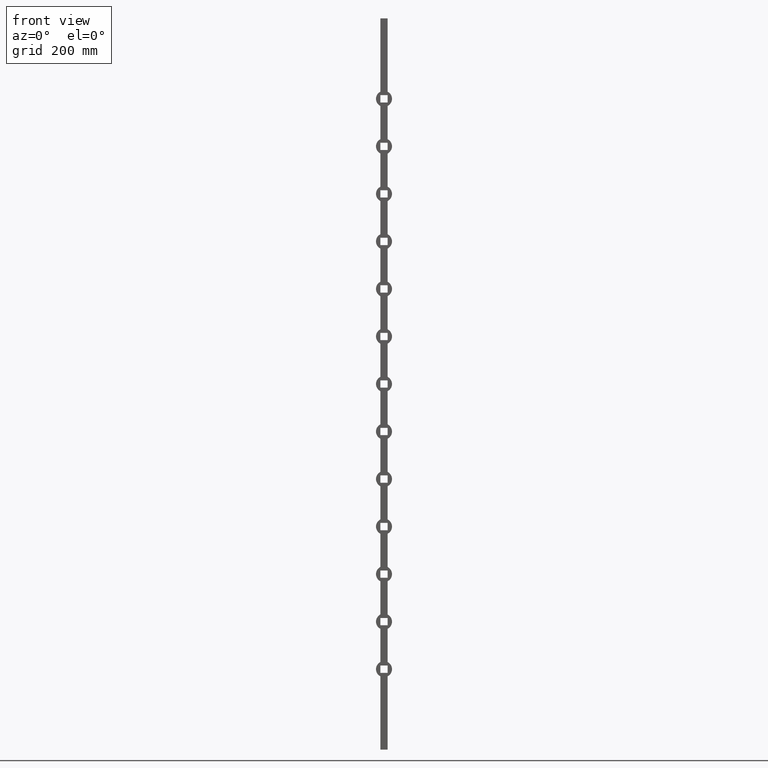
[diagram: clean part render]
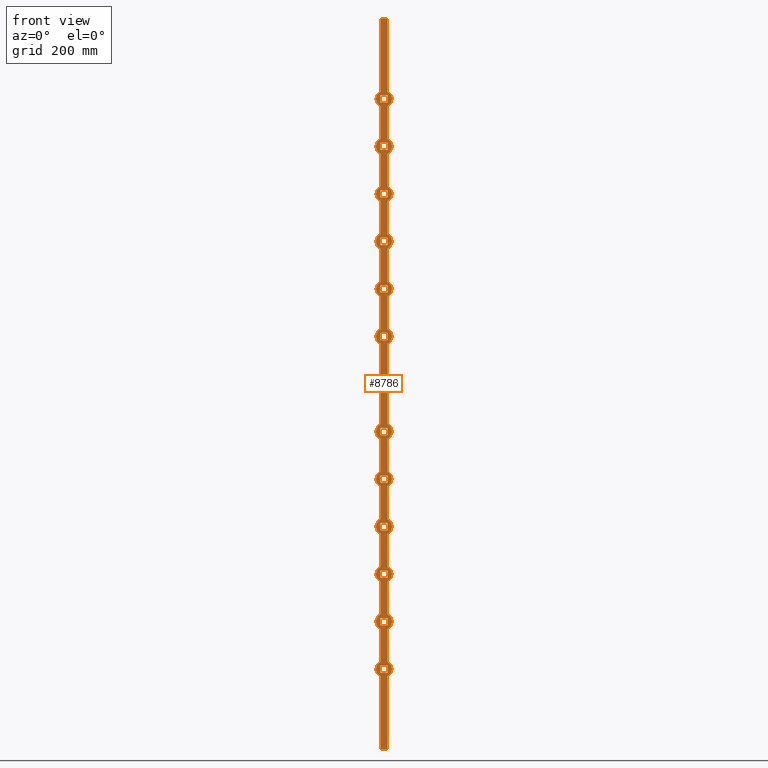
[diagram: same view with one face highlighted and labeled with its STEP entity id]
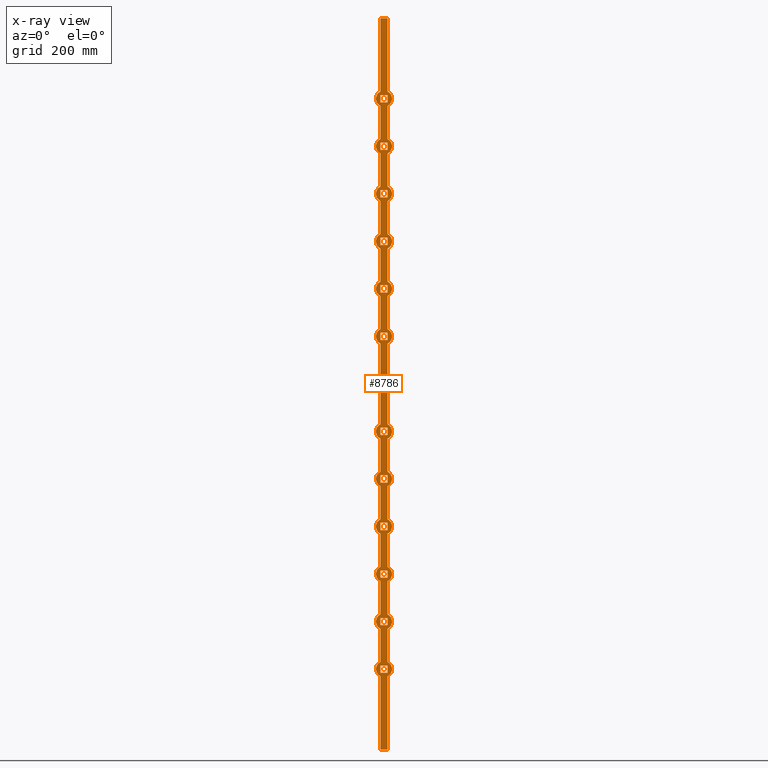
[diagram: x-ray of the same camera — body ghosted, the highlighted face saturated]
A machine part, front view. The second image highlights one B-rep face of the part: STEP entity #8786.
The next image is the same camera in x-ray: the body ghosted, the highlighted face saturated — about 0% of this face is hidden behind the body in this view.
In plain terms, the highlighted planar face has unit normal (0, 1, 0).
Its self-contained STEP definition (entity closure, byte-faithful):
#3 = CARTESIAN_POINT ( 'NONE',  ( -10.00000000000001066, -10.00000000000000178, -399.9999999999998863 ) ) ;
#12 = LINE ( 'NONE', #8533, #12123 ) ;
#15 = DIRECTION ( 'NONE',  ( -0.000000000000000000, -0.000000000000000000, -1.000000000000000000 ) ) ;
#34 = DIRECTION ( 'NONE',  ( 0.000000000000000000, 1.000000000000000000, 0.000000000000000000 ) ) ;
#90 = DIRECTION ( 'NONE',  ( -0.000000000000000000, -0.000000000000000000, -1.000000000000000000 ) ) ;
#96 = EDGE_CURVE ( 'NONE', #7891, #3512, #2397, .T. ) ;
#119 = ORIENTED_EDGE ( 'NONE', *, *, #13601, .T. ) ;
#122 = CARTESIAN_POINT ( 'NONE',  ( 10.00000000000000178, -10.00000000000000178, 1000.000000000000000 ) ) ;
#125 = EDGE_LOOP ( 'NONE', ( #14368, #14559, #14007, #7725, #10226, #13608, #4546, #3234, #8163, #14116, #4847, #14780, #2078, #7206, #2631, #4207, #6853, #4527, #14347, #6351, #3439, #14690, #680, #5837, #139, #7771, #5243, #5652, #7992, #658, #11194, #11912, #11833, #7035, #12761, #6857, #4155, #13166, #7375, #6702, #1544, #4898, #4489, #8678, #13988, #8427, #11007, #426, #10465, #1386, #3527, #654, #10565, #5622, #5658, #1952 ) ) ;
#132 = EDGE_CURVE ( 'NONE', #477, #319, #10902, .T. ) ;
#139 = ORIENTED_EDGE ( 'NONE', *, *, #4624, .F. ) ;
#149 = CARTESIAN_POINT ( 'NONE',  ( -10.00000000000001066, -10.00000000000000178, -660.0000000000001137 ) ) ;
#183 = CARTESIAN_POINT ( 'NONE',  ( -10.00000000000000888, -10.00000000000000355, -640.0000000000001137 ) ) ;
#250 = VECTOR ( 'NONE', #9113, 1000.000000000000000 ) ;
#253 = VERTEX_POINT ( 'NONE', #5194 ) ;
#260 = ORIENTED_EDGE ( 'NONE', *, *, #5058, .T. ) ;
#263 = CIRCLE ( 'NONE', #3681, 22.00000000000000711 ) ;
#267 = CARTESIAN_POINT ( 'NONE',  ( 10.00000000000000711, -10.00000000000000355, 250.0000000000000000 ) ) ;
#282 = VECTOR ( 'NONE', #7059, 1000.000000000000000 ) ;
#294 = DIRECTION ( 'NONE',  ( -8.673617379884028076E-17, -0.000000000000000000, -1.000000000000000000 ) ) ;
#302 = FACE_OUTER_BOUND ( 'NONE', #125, .T. ) ;
#319 = VERTEX_POINT ( 'NONE', #9034 ) ;
#327 = VERTEX_POINT ( 'NONE', #10022 ) ;
#333 = VECTOR ( 'NONE', #9374, 1000.000000000000000 ) ;
#348 = VECTOR ( 'NONE', #1667, 1000.000000000000000 ) ;
#369 = EDGE_CURVE ( 'NONE', #11802, #3410, #10349, .T. ) ;
#413 = EDGE_CURVE ( 'NONE', #6531, #8673, #1123, .T. ) ;
#419 = CARTESIAN_POINT ( 'NONE',  ( -10.00000000000000888, -10.00000000000000355, -510.0000000000000000 ) ) ;
#426 = ORIENTED_EDGE ( 'NONE', *, *, #4438, .F. ) ;
#434 = VERTEX_POINT ( 'NONE', #3437 ) ;
#435 = VERTEX_POINT ( 'NONE', #12496 ) ;
#437 = EDGE_CURVE ( 'NONE', #5953, #12577, #6091, .T. ) ;
#464 = ORIENTED_EDGE ( 'NONE', *, *, #6368, .T. ) ;
#472 = ORIENTED_EDGE ( 'NONE', *, *, #8526, .T. ) ;
#477 = VERTEX_POINT ( 'NONE', #9088 ) ;
#517 = CIRCLE ( 'NONE', #13362, 21.99999999999999289 ) ;
#531 = CIRCLE ( 'NONE', #4899, 22.00000000000002132 ) ;
#545 = LINE ( 'NONE', #13603, #9618 ) ;
#547 = VECTOR ( 'NONE', #1668, 1000.000000000000000 ) ;
#568 = VECTOR ( 'NONE', #4375, 1000.000000000000000 ) ;
#613 = VERTEX_POINT ( 'NONE', #5340 ) ;
#626 = LINE ( 'NONE', #5761, #4683 ) ;
#644 = VERTEX_POINT ( 'NONE', #10899 ) ;
#654 = ORIENTED_EDGE ( 'NONE', *, *, #8547, .F. ) ;
#658 = ORIENTED_EDGE ( 'NONE', *, *, #4099, .F. ) ;
#680 = ORIENTED_EDGE ( 'NONE', *, *, #5144, .F. ) ;
#688 = VERTEX_POINT ( 'NONE', #5376 ) ;
#698 = VECTOR ( 'NONE', #9014, 1000.000000000000000 ) ;
#704 = VECTOR ( 'NONE', #3874, 1000.000000000000000 ) ;
#731 = CARTESIAN_POINT ( 'NONE',  ( -10.00000000000000888, -10.00000000000000355, 790.0000000000000000 ) ) ;
#739 = LINE ( 'NONE', #7840, #13889 ) ;
#759 = LINE ( 'NONE', #11359, #8026 ) ;
#815 = VERTEX_POINT ( 'NONE', #13494 ) ;
#822 = CARTESIAN_POINT ( 'NONE',  ( -9.999999999999998224, -10.00000000000000178, 1000.000000000000000 ) ) ;
#831 = AXIS2_PLACEMENT_3D ( 'NONE', #8813, #3067, #8876 ) ;
#839 = CARTESIAN_POINT ( 'NONE',  ( 0.000000000000000000, -10.00000000000000000, 780.0000000000000000 ) ) ;
#850 = CARTESIAN_POINT ( 'NONE',  ( 10.00000000000000711, -10.00000000000000355, -660.0000000000001137 ) ) ;
#864 = LINE ( 'NONE', #8483, #7791 ) ;
#882 = VERTEX_POINT ( 'NONE', #11232 ) ;
#893 = VECTOR ( 'NONE', #12006, 1000.000000000000000 ) ;
#1002 = CARTESIAN_POINT ( 'NONE',  ( -9.999999999999998224, -10.00000000000000178, 1000.000000000000000 ) ) ;
#1007 = CARTESIAN_POINT ( 'NONE',  ( 0.000000000000000000, -10.00000000000000000, 0.000000000000000000 ) ) ;
#1011 = DIRECTION ( 'NONE',  ( 0.000000000000000000, 0.000000000000000000, 1.000000000000000000 ) ) ;
#1021 = EDGE_CURVE ( 'NONE', #12890, #1202, #11892, .T. ) ;
#1039 = FACE_BOUND ( 'NONE', #5809, .T. ) ;
#1050 = LINE ( 'NONE', #7636, #8326 ) ;
#1059 = CARTESIAN_POINT ( 'NONE',  ( -9.999999999999998224, -10.00000000000000178, 1000.000000000000000 ) ) ;
#1082 = DIRECTION ( 'NONE',  ( 1.000000000000000000, 0.000000000000000000, 0.000000000000000000 ) ) ;
#1118 = EDGE_CURVE ( 'NONE', #4515, #4016, #5476, .T. ) ;
#1123 = LINE ( 'NONE', #4626, #1291 ) ;
#1158 = VECTOR ( 'NONE', #6892, 1000.000000000000000 ) ;
#1200 = DIRECTION ( 'NONE',  ( -0.000000000000000000, -0.000000000000000000, -1.000000000000000000 ) ) ;
#1202 = VERTEX_POINT ( 'NONE', #10872 ) ;
#1208 = ORIENTED_EDGE ( 'NONE', *, *, #12080, .T. ) ;
#1209 = VECTOR ( 'NONE', #9104, 1000.000000000000000 ) ;
#1212 = ORIENTED_EDGE ( 'NONE', *, *, #12927, .T. ) ;
#1219 = DIRECTION ( 'NONE',  ( 0.000000000000000000, 1.000000000000000000, 0.000000000000000000 ) ) ;
#1220 = AXIS2_PLACEMENT_3D ( 'NONE', #4518, #1219, #2239 ) ;
#1236 = EDGE_CURVE ( 'NONE', #2511, #7786, #3896, .T. ) ;
#1249 = CARTESIAN_POINT ( 'NONE',  ( 10.00000000000000711, -10.00000000000000355, 510.0000000000000000 ) ) ;
#1256 = VECTOR ( 'NONE', #6154, 1000.000000000000000 ) ;
#1289 = CARTESIAN_POINT ( 'NONE',  ( 10.00000000000000711, -10.00000000000000355, -399.9999999999998863 ) ) ;
#1291 = VECTOR ( 'NONE', #13788, 1000.000000000000000 ) ;
#1294 = EDGE_CURVE ( 'NONE', #434, #2612, #2845, .T. ) ;
#1303 = VECTOR ( 'NONE', #12316, 1000.000000000000000 ) ;
#1327 = LINE ( 'NONE', #9495, #14320 ) ;
#1332 = LINE ( 'NONE', #1535, #6664 ) ;
#1339 = ORIENTED_EDGE ( 'NONE', *, *, #3818, .T. ) ;
#1342 = EDGE_CURVE ( 'NONE', #10619, #11004, #4596, .T. ) ;
#1345 = DIRECTION ( 'NONE',  ( 0.000000000000000000, 0.000000000000000000, 1.000000000000000000 ) ) ;
#1362 = DIRECTION ( 'NONE',  ( 0.000000000000000000, 1.000000000000000000, 0.000000000000000000 ) ) ;
#1383 = DIRECTION ( 'NONE',  ( 0.000000000000000000, 1.000000000000000000, 0.000000000000000000 ) ) ;
#1386 = ORIENTED_EDGE ( 'NONE', *, *, #6813, .F. ) ;
#1397 = DIRECTION ( 'NONE',  ( -0.000000000000000000, -0.000000000000000000, -1.000000000000000000 ) ) ;
#1402 = LINE ( 'NONE', #7123, #3336 ) ;
#1403 = VERTEX_POINT ( 'NONE', #12640 ) ;
#1404 = VECTOR ( 'NONE', #7979, 1000.000000000000000 ) ;
#1410 = EDGE_LOOP ( 'NONE', ( #2747, #6031, #14204, #10379 ) ) ;
#1416 = EDGE_CURVE ( 'NONE', #1588, #1510, #531, .T. ) ;
#1426 = VERTEX_POINT ( 'NONE', #4709 ) ;
#1474 = CARTESIAN_POINT ( 'NONE',  ( 10.00000000000000178, -10.00000000000000178, 1000.000000000000000 ) ) ;
#1478 = CARTESIAN_POINT ( 'NONE',  ( 10.00000000000000711, -10.00000000000000355, 250.0000000000000000 ) ) ;
#1510 = VERTEX_POINT ( 'NONE', #5012 ) ;
#1514 = CARTESIAN_POINT ( 'NONE',  ( -10.00000000000000178, -10.00000000000000000, -240.4040820577345983 ) ) ;
#1518 = ORIENTED_EDGE ( 'NONE', *, *, #13388, .T. ) ;
#1529 = CARTESIAN_POINT ( 'NONE',  ( 9.999999999999984013, -10.00000000000000000, -669.5959179422656007 ) ) ;
#1532 = LINE ( 'NONE', #9045, #10773 ) ;
#1535 = CARTESIAN_POINT ( 'NONE',  ( -10.00000000000001066, -10.00000000000000355, 250.0000000000000000 ) ) ;
#1544 = ORIENTED_EDGE ( 'NONE', *, *, #7735, .T. ) ;
#1556 = DIRECTION ( 'NONE',  ( -8.673617379884028076E-17, -0.000000000000000000, -1.000000000000000000 ) ) ;
#1576 = VERTEX_POINT ( 'NONE', #1983 ) ;
#1579 = LINE ( 'NONE', #1474, #333 ) ;
#1580 = VERTEX_POINT ( 'NONE', #3050 ) ;
#1582 = CIRCLE ( 'NONE', #1220, 22.00000000000002132 ) ;
#1586 = LINE ( 'NONE', #183, #7264 ) ;
#1588 = VERTEX_POINT ( 'NONE', #6515 ) ;
#1593 = DIRECTION ( 'NONE',  ( -0.000000000000000000, -0.000000000000000000, -1.000000000000000000 ) ) ;
#1600 = EDGE_CURVE ( 'NONE', #7891, #2133, #2679, .T. ) ;
#1638 = DIRECTION ( 'NONE',  ( 8.673617379884028076E-17, 0.000000000000000000, 1.000000000000000000 ) ) ;
#1662 = CARTESIAN_POINT ( 'NONE',  ( -10.00000000000000888, -10.00000000000000355, 660.0000000000000000 ) ) ;
#1667 = DIRECTION ( 'NONE',  ( 8.673617379884028076E-17, 0.000000000000000000, 1.000000000000000000 ) ) ;
#1668 = DIRECTION ( 'NONE',  ( 1.000000000000000000, 0.000000000000000000, 0.000000000000000000 ) ) ;
#1711 = VERTEX_POINT ( 'NONE', #4843 ) ;
#1739 = AXIS2_PLACEMENT_3D ( 'NONE', #12034, #6310, #6366 ) ;
#1775 = DIRECTION ( 'NONE',  ( 0.000000000000000000, 0.000000000000000000, 1.000000000000000000 ) ) ;
#1778 = LINE ( 'NONE', #9206, #11526 ) ;
#1860 = CARTESIAN_POINT ( 'NONE',  ( -9.999999999999998224, -10.00000000000000355, -799.5959179422654870 ) ) ;
#1861 = DIRECTION ( 'NONE',  ( 0.000000000000000000, 0.000000000000000000, 1.000000000000000000 ) ) ;
#1918 = CIRCLE ( 'NONE', #7512, 22.00000000000002132 ) ;
#1919 = CARTESIAN_POINT ( 'NONE',  ( 0.000000000000000000, -10.00000000000000000, 130.0000000000000000 ) ) ;
#1931 = VERTEX_POINT ( 'NONE', #5050 ) ;
#1932 = CARTESIAN_POINT ( 'NONE',  ( 0.000000000000000000, -10.00000000000000000, 520.0000000000000000 ) ) ;
#1935 = CIRCLE ( 'NONE', #7460, 22.00000000000002132 ) ;
#1952 = ORIENTED_EDGE ( 'NONE', *, *, #3306, .F. ) ;
#1961 = CARTESIAN_POINT ( 'NONE',  ( -10.00000000000001066, -10.00000000000000355, -399.9999999999998863 ) ) ;
#1978 = EDGE_CURVE ( 'NONE', #10108, #8500, #3882, .T. ) ;
#1983 = CARTESIAN_POINT ( 'NONE',  ( 9.999999999999984013, -10.00000000000000000, 630.4040820577346267 ) ) ;
#1994 = DIRECTION ( 'NONE',  ( -8.673617379884028076E-17, -0.000000000000000000, -1.000000000000000000 ) ) ;
#2009 = CARTESIAN_POINT ( 'NONE',  ( 10.00000000000000178, -10.00000000000000355, -110.4040820577345841 ) ) ;
#2078 = ORIENTED_EDGE ( 'NONE', *, *, #1236, .F. ) ;
#2085 = ORIENTED_EDGE ( 'NONE', *, *, #13604, .T. ) ;
#2126 = EDGE_LOOP ( 'NONE', ( #5296, #5982, #5168, #11010 ) ) ;
#2133 = VERTEX_POINT ( 'NONE', #6697 ) ;
#2134 = LINE ( 'NONE', #7910, #8667 ) ;
#2144 = LINE ( 'NONE', #14439, #6893 ) ;
#2148 = LINE ( 'NONE', #9387, #11527 ) ;
#2178 = CARTESIAN_POINT ( 'NONE',  ( -10.00000000000001066, -10.00000000000000178, -10.00000000000000888 ) ) ;
#2188 = LINE ( 'NONE', #8142, #8010 ) ;
#2239 = DIRECTION ( 'NONE',  ( 0.000000000000000000, 0.000000000000000000, 1.000000000000000000 ) ) ;
#2254 = EDGE_LOOP ( 'NONE', ( #1518, #6699, #13769, #1208 ) ) ;
#2258 = DIRECTION ( 'NONE',  ( -1.000000000000000000, -0.000000000000000000, -0.000000000000000000 ) ) ;
#2267 = ORIENTED_EDGE ( 'NONE', *, *, #5016, .T. ) ;
#2284 = VECTOR ( 'NONE', #10519, 1000.000000000000000 ) ;
#2301 = LINE ( 'NONE', #4242, #7416 ) ;
#2333 = CIRCLE ( 'NONE', #6381, 21.99999999999999289 ) ;
#2341 = EDGE_CURVE ( 'NONE', #11302, #5470, #2148, .T. ) ;
#2371 = EDGE_CURVE ( 'NONE', #14703, #2133, #4930, .T. ) ;
#2374 = CARTESIAN_POINT ( 'NONE',  ( 10.00000000000000711, -10.00000000000000355, -530.0000000000000000 ) ) ;
#2392 = CARTESIAN_POINT ( 'NONE',  ( -10.00000000000001066, -10.00000000000000355, -530.0000000000000000 ) ) ;
#2397 = LINE ( 'NONE', #11671, #14120 ) ;
#2406 = CIRCLE ( 'NONE', #2787, 22.00000000000002132 ) ;
#2473 = ORIENTED_EDGE ( 'NONE', *, *, #7867, .T. ) ;
#2491 = EDGE_CURVE ( 'NONE', #3259, #7984, #14400, .T. ) ;
#2497 = CARTESIAN_POINT ( 'NONE',  ( -10.00000000000000888, -10.00000000000000355, 140.0000000000000000 ) ) ;
#2511 = VERTEX_POINT ( 'NONE', #6536 ) ;
#2526 = CARTESIAN_POINT ( 'NONE',  ( 10.00000000000000178, -10.00000000000000178, 1000.000000000000000 ) ) ;
#2536 = EDGE_CURVE ( 'NONE', #8673, #3464, #1582, .T. ) ;
#2541 = DIRECTION ( 'NONE',  ( -8.673617379884028076E-17, -0.000000000000000000, -1.000000000000000000 ) ) ;
#2562 = LINE ( 'NONE', #9287, #4473 ) ;
#2608 = VERTEX_POINT ( 'NONE', #10207 ) ;
#2612 = VERTEX_POINT ( 'NONE', #13648 ) ;
#2616 = EDGE_CURVE ( 'NONE', #14392, #13416, #4569, .T. ) ;
#2619 = VERTEX_POINT ( 'NONE', #9161 ) ;
#2631 = ORIENTED_EDGE ( 'NONE', *, *, #5065, .F. ) ;
#2656 = DIRECTION ( 'NONE',  ( -1.000000000000000000, -0.000000000000000000, -0.000000000000000000 ) ) ;
#2679 = CIRCLE ( 'NONE', #7499, 22.00000000000000355 ) ;
#2714 = CARTESIAN_POINT ( 'NONE',  ( -9.999999999999998224, -10.00000000000000178, 1000.000000000000000 ) ) ;
#2738 = ORIENTED_EDGE ( 'NONE', *, *, #5275, .T. ) ;
#2742 = CIRCLE ( 'NONE', #11177, 22.00000000000002132 ) ;
#2747 = ORIENTED_EDGE ( 'NONE', *, *, #7326, .T. ) ;
#2757 = LINE ( 'NONE', #6942, #2929 ) ;
#2773 = CARTESIAN_POINT ( 'NONE',  ( 10.00000000000000178, -10.00000000000000355, 409.5959179422654870 ) ) ;
#2775 = CARTESIAN_POINT ( 'NONE',  ( -10.00000000000000888, -10.00000000000000355, -770.0000000000000000 ) ) ;
#2779 = VERTEX_POINT ( 'NONE', #6026 ) ;
#2787 = AXIS2_PLACEMENT_3D ( 'NONE', #8428, #2871, #5142 ) ;
#2795 = VECTOR ( 'NONE', #3856, 1000.000000000000000 ) ;
#2812 = FACE_BOUND ( 'NONE', #6874, .T. ) ;
#2845 = LINE ( 'NONE', #822, #893 ) ;
#2867 = CARTESIAN_POINT ( 'NONE',  ( 10.00000000000000888, -10.00000000000000355, 530.0000000000000000 ) ) ;
#2871 = DIRECTION ( 'NONE',  ( 0.000000000000000000, 1.000000000000000000, 0.000000000000000000 ) ) ;
#2889 = EDGE_CURVE ( 'NONE', #11678, #6886, #2983, .T. ) ;
#2899 = EDGE_CURVE ( 'NONE', #11126, #11451, #8138, .T. ) ;
#2908 = EDGE_CURVE ( 'NONE', #1588, #4337, #2134, .T. ) ;
#2922 = ORIENTED_EDGE ( 'NONE', *, *, #10735, .T. ) ;
#2929 = VECTOR ( 'NONE', #9237, 1000.000000000000000 ) ;
#2948 = ORIENTED_EDGE ( 'NONE', *, *, #8433, .T. ) ;
#2968 = LINE ( 'NONE', #3655, #2284 ) ;
#2983 = LINE ( 'NONE', #11583, #9212 ) ;
#3027 = EDGE_CURVE ( 'NONE', #3464, #1931, #9736, .T. ) ;
#3036 = AXIS2_PLACEMENT_3D ( 'NONE', #11767, #13070, #7300 ) ;
#3048 = CARTESIAN_POINT ( 'NONE',  ( -9.999999999999984013, -10.00000000000000000, -760.4040820577346267 ) ) ;
#3050 = CARTESIAN_POINT ( 'NONE',  ( 10.00000000000000711, -10.00000000000000355, 120.0000000000000000 ) ) ;
#3058 = DIRECTION ( 'NONE',  ( 0.000000000000000000, 1.000000000000000000, 0.000000000000000000 ) ) ;
#3059 = DIRECTION ( 'NONE',  ( -0.000000000000000000, -0.000000000000000000, -1.000000000000000000 ) ) ;
#3067 = DIRECTION ( 'NONE',  ( 0.000000000000000000, 1.000000000000000000, 0.000000000000000000 ) ) ;
#3076 = EDGE_CURVE ( 'NONE', #6303, #13990, #864, .T. ) ;
#3088 = DIRECTION ( 'NONE',  ( 0.000000000000000000, 0.000000000000000000, 1.000000000000000000 ) ) ;
#3112 = ORIENTED_EDGE ( 'NONE', *, *, #9669, .T. ) ;
#3114 = VECTOR ( 'NONE', #12797, 1000.000000000000000 ) ;
#3155 = ORIENTED_EDGE ( 'NONE', *, *, #4958, .T. ) ;
#3165 = DIRECTION ( 'NONE',  ( 8.673617379884028076E-17, 0.000000000000000000, 1.000000000000000000 ) ) ;
#3186 = VERTEX_POINT ( 'NONE', #11293 ) ;
#3195 = EDGE_CURVE ( 'NONE', #8500, #477, #3672, .T. ) ;
#3200 = CARTESIAN_POINT ( 'NONE',  ( -10.00000000000001066, -10.00000000000000355, 380.0000000000000000 ) ) ;
#3234 = ORIENTED_EDGE ( 'NONE', *, *, #13479, .F. ) ;
#3259 = VERTEX_POINT ( 'NONE', #8097 ) ;
#3276 = LINE ( 'NONE', #5627, #250 ) ;
#3281 = CARTESIAN_POINT ( 'NONE',  ( -10.00000000000000888, -10.00000000000000355, -640.0000000000001137 ) ) ;
#3303 = VERTEX_POINT ( 'NONE', #6944 ) ;
#3306 = EDGE_CURVE ( 'NONE', #4515, #1202, #3843, .T. ) ;
#3313 = CARTESIAN_POINT ( 'NONE',  ( -10.00000000000001066, -10.00000000000000178, 510.0000000000000000 ) ) ;
#3321 = CARTESIAN_POINT ( 'NONE',  ( 10.00000000000000178, -10.00000000000000178, 1000.000000000000000 ) ) ;
#3336 = VECTOR ( 'NONE', #3665, 1000.000000000000000 ) ;
#3362 = EDGE_LOOP ( 'NONE', ( #10054, #14696, #4222, #6721 ) ) ;
#3384 = CARTESIAN_POINT ( 'NONE',  ( -10.00000000000000888, -10.00000000000000355, 400.0000000000000000 ) ) ;
#3410 = VERTEX_POINT ( 'NONE', #13175 ) ;
#3434 = AXIS2_PLACEMENT_3D ( 'NONE', #9136, #4740, #6951 ) ;
#3437 = CARTESIAN_POINT ( 'NONE',  ( -9.999999999999998224, -10.00000000000000178, 1000.000000000000000 ) ) ;
#3439 = ORIENTED_EDGE ( 'NONE', *, *, #1978, .F. ) ;
#3453 = VERTEX_POINT ( 'NONE', #2009 ) ;
#3456 = VECTOR ( 'NONE', #8116, 1000.000000000000000 ) ;
#3464 = VERTEX_POINT ( 'NONE', #7634 ) ;
#3493 = EDGE_CURVE ( 'NONE', #644, #882, #2301, .T. ) ;
#3512 = VERTEX_POINT ( 'NONE', #10896 ) ;
#3527 = ORIENTED_EDGE ( 'NONE', *, *, #7025, .T. ) ;
#3573 = DIRECTION ( 'NONE',  ( 0.000000000000000000, 1.000000000000000000, 0.000000000000000000 ) ) ;
#3579 = EDGE_CURVE ( 'NONE', #8070, #3453, #14379, .T. ) ;
#3582 = DIRECTION ( 'NONE',  ( 0.000000000000000000, 0.000000000000000000, 1.000000000000000000 ) ) ;
#3584 = AXIS2_PLACEMENT_3D ( 'NONE', #5155, #10836, #6297 ) ;
#3591 = CARTESIAN_POINT ( 'NONE',  ( 10.00000000000000178, -10.00000000000000178, 1000.000000000000000 ) ) ;
#3642 = VERTEX_POINT ( 'NONE', #1289 ) ;
#3655 = CARTESIAN_POINT ( 'NONE',  ( -10.00000000000000888, -10.00000000000000355, 10.00000000000000888 ) ) ;
#3665 = DIRECTION ( 'NONE',  ( 1.000000000000000000, 0.000000000000000000, 0.000000000000000000 ) ) ;
#3672 = CIRCLE ( 'NONE', #13225, 21.99999999999999289 ) ;
#3675 = FACE_BOUND ( 'NONE', #9711, .T. ) ;
#3681 = AXIS2_PLACEMENT_3D ( 'NONE', #13910, #5354, #11663 ) ;
#3693 = LINE ( 'NONE', #8407, #704 ) ;
#3745 = DIRECTION ( 'NONE',  ( -8.673617379884028076E-17, -0.000000000000000000, -1.000000000000000000 ) ) ;
#3753 = DIRECTION ( 'NONE',  ( -0.000000000000000000, -0.000000000000000000, -1.000000000000000000 ) ) ;
#3757 = EDGE_CURVE ( 'NONE', #8944, #13790, #11863, .T. ) ;
#3763 = CARTESIAN_POINT ( 'NONE',  ( 0.000000000000000000, -10.00000000000000000, -780.0000000000000000 ) ) ;
#3768 = CIRCLE ( 'NONE', #3434, 22.00000000000000355 ) ;
#3798 = CARTESIAN_POINT ( 'NONE',  ( 0.000000000000000000, -10.00000000000000000, -650.0000000000001137 ) ) ;
#3801 = CARTESIAN_POINT ( 'NONE',  ( -10.00000000000001066, -10.00000000000000355, 510.0000000000000000 ) ) ;
#3818 = EDGE_CURVE ( 'NONE', #3410, #6303, #2968, .T. ) ;
#3843 = CIRCLE ( 'NONE', #3036, 22.00000000000002132 ) ;
#3856 = DIRECTION ( 'NONE',  ( -1.000000000000000000, -0.000000000000000000, -0.000000000000000000 ) ) ;
#3859 = ORIENTED_EDGE ( 'NONE', *, *, #369, .T. ) ;
#3874 = DIRECTION ( 'NONE',  ( -8.673617379884028076E-17, -0.000000000000000000, -1.000000000000000000 ) ) ;
#3882 = LINE ( 'NONE', #14183, #9589 ) ;
#3892 = DIRECTION ( 'NONE',  ( 0.000000000000000000, 1.000000000000000000, 0.000000000000000000 ) ) ;
#3896 = LINE ( 'NONE', #7445, #14607 ) ;
#3912 = EDGE_CURVE ( 'NONE', #2619, #253, #9541, .T. ) ;
#3922 = AXIS2_PLACEMENT_3D ( 'NONE', #9469, #3892, #4929 ) ;
#3947 = CARTESIAN_POINT ( 'NONE',  ( 10.00000000000000888, -10.00000000000000355, 790.0000000000000000 ) ) ;
#3968 = CARTESIAN_POINT ( 'NONE',  ( 9.999999999999984013, -10.00000000000000000, 500.4040820577345698 ) ) ;
#3986 = LINE ( 'NONE', #12852, #10753 ) ;
#4016 = VERTEX_POINT ( 'NONE', #3048 ) ;
#4035 = VERTEX_POINT ( 'NONE', #6573 ) ;
#4040 = FACE_BOUND ( 'NONE', #8332, .T. ) ;
#4048 = VERTEX_POINT ( 'NONE', #9960 ) ;
#4049 = EDGE_CURVE ( 'NONE', #7786, #4568, #9891, .T. ) ;
#4099 = EDGE_CURVE ( 'NONE', #4475, #5953, #1918, .T. ) ;
#4102 = AXIS2_PLACEMENT_3D ( 'NONE', #1002, #10094, #4417 ) ;
#4155 = ORIENTED_EDGE ( 'NONE', *, *, #12213, .T. ) ;
#4178 = LINE ( 'NONE', #122, #1158 ) ;
#4200 = CARTESIAN_POINT ( 'NONE',  ( 10.00000000000000711, -10.00000000000000355, 770.0000000000000000 ) ) ;
#4207 = ORIENTED_EDGE ( 'NONE', *, *, #10572, .F. ) ;
#4208 = DIRECTION ( 'NONE',  ( 0.000000000000000000, 1.000000000000000000, 0.000000000000000000 ) ) ;
#4212 = VECTOR ( 'NONE', #11283, 1000.000000000000000 ) ;
#4222 = ORIENTED_EDGE ( 'NONE', *, *, #2341, .T. ) ;
#4237 = FACE_BOUND ( 'NONE', #10046, .T. ) ;
#4242 = CARTESIAN_POINT ( 'NONE',  ( 10.00000000000000711, -10.00000000000000355, -270.0000000000000000 ) ) ;
#4285 = LINE ( 'NONE', #2775, #13020 ) ;
#4337 = VERTEX_POINT ( 'NONE', #12321 ) ;
#4356 = CARTESIAN_POINT ( 'NONE',  ( -10.00000000000001066, -10.00000000000000178, 120.0000000000000000 ) ) ;
#4375 = DIRECTION ( 'NONE',  ( -1.000000000000000000, -0.000000000000000000, -0.000000000000000000 ) ) ;
#4395 = VECTOR ( 'NONE', #10419, 1000.000000000000000 ) ;
#4405 = CARTESIAN_POINT ( 'NONE',  ( -10.00000000000001066, -10.00000000000000355, -530.0000000000000000 ) ) ;
#4410 = ORIENTED_EDGE ( 'NONE', *, *, #3912, .T. ) ;
#4417 = DIRECTION ( 'NONE',  ( 0.000000000000000000, -0.000000000000000000, 1.000000000000000000 ) ) ;
#4438 = EDGE_CURVE ( 'NONE', #12377, #3512, #263, .T. ) ;
#4454 = VECTOR ( 'NONE', #8473, 1000.000000000000000 ) ;
#4473 = VECTOR ( 'NONE', #8090, 1000.000000000000000 ) ;
#4475 = VERTEX_POINT ( 'NONE', #8834 ) ;
#4477 = DIRECTION ( 'NONE',  ( 8.673617379884028076E-17, 0.000000000000000000, 1.000000000000000000 ) ) ;
#4489 = ORIENTED_EDGE ( 'NONE', *, *, #5456, .T. ) ;
#4492 = CARTESIAN_POINT ( 'NONE',  ( 10.00000000000000178, -10.00000000000000355, -370.4040820577344562 ) ) ;
#4515 = VERTEX_POINT ( 'NONE', #13483 ) ;
#4518 = CARTESIAN_POINT ( 'NONE',  ( 0.000000000000000000, -10.00000000000000000, -780.0000000000000000 ) ) ;
#4527 = ORIENTED_EDGE ( 'NONE', *, *, #11854, .F. ) ;
#4543 = VERTEX_POINT ( 'NONE', #9094 ) ;
#4546 = ORIENTED_EDGE ( 'NONE', *, *, #413, .F. ) ;
#4564 = VECTOR ( 'NONE', #6481, 1000.000000000000000 ) ;
#4568 = VERTEX_POINT ( 'NONE', #11330 ) ;
#4569 = LINE ( 'NONE', #11405, #1404 ) ;
#4570 = CARTESIAN_POINT ( 'NONE',  ( -10.00000000000001066, -10.00000000000000178, 380.0000000000000000 ) ) ;
#4596 = LINE ( 'NONE', #10125, #8172 ) ;
#4606 = EDGE_CURVE ( 'NONE', #1580, #8740, #1532, .T. ) ;
#4621 = VECTOR ( 'NONE', #8144, 1000.000000000000000 ) ;
#4624 = EDGE_CURVE ( 'NONE', #5624, #14137, #4178, .T. ) ;
#4626 = CARTESIAN_POINT ( 'NONE',  ( 10.00000000000000178, -10.00000000000000178, 1000.000000000000000 ) ) ;
#4652 = EDGE_CURVE ( 'NONE', #5083, #10558, #7575, .T. ) ;
#4683 = VECTOR ( 'NONE', #14768, 1000.000000000000000 ) ;
#4707 = EDGE_CURVE ( 'NONE', #815, #4035, #3986, .T. ) ;
#4709 = CARTESIAN_POINT ( 'NONE',  ( -9.999999999999984013, -10.00000000000000000, 279.5959179422654870 ) ) ;
#4713 = VERTEX_POINT ( 'NONE', #419 ) ;
#4721 = EDGE_CURVE ( 'NONE', #10558, #11126, #1332, .T. ) ;
#4734 = FACE_BOUND ( 'NONE', #2254, .T. ) ;
#4736 = VERTEX_POINT ( 'NONE', #12909 ) ;
#4740 = DIRECTION ( 'NONE',  ( 0.000000000000000000, 1.000000000000000000, 0.000000000000000000 ) ) ;
#4824 = VECTOR ( 'NONE', #3753, 1000.000000000000000 ) ;
#4830 = DIRECTION ( 'NONE',  ( 1.000000000000000000, 0.000000000000000000, 0.000000000000000000 ) ) ;
#4843 = CARTESIAN_POINT ( 'NONE',  ( -9.999999999999984013, -10.00000000000000000, -500.4040820577345698 ) ) ;
#4847 = ORIENTED_EDGE ( 'NONE', *, *, #5175, .F. ) ;
#4859 = VECTOR ( 'NONE', #11593, 1000.000000000000000 ) ;
#4875 = EDGE_LOOP ( 'NONE', ( #2738, #14571, #1212, #11466 ) ) ;
#4879 = CARTESIAN_POINT ( 'NONE',  ( -10.00000000000000888, -10.00000000000000355, -120.0000000000000000 ) ) ;
#4898 = ORIENTED_EDGE ( 'NONE', *, *, #11315, .F. ) ;
#4899 = AXIS2_PLACEMENT_3D ( 'NONE', #12794, #3573, #13837 ) ;
#4929 = DIRECTION ( 'NONE',  ( 0.000000000000000000, 0.000000000000000000, 1.000000000000000000 ) ) ;
#4930 = LINE ( 'NONE', #8388, #5825 ) ;
#4949 = LINE ( 'NONE', #1059, #7279 ) ;
#4958 = EDGE_CURVE ( 'NONE', #13429, #2608, #8449, .T. ) ;
#4961 = LINE ( 'NONE', #2392, #11037 ) ;
#5012 = CARTESIAN_POINT ( 'NONE',  ( -9.999999999999984013, -10.00000000000000000, 539.5959179422654870 ) ) ;
#5016 = EDGE_CURVE ( 'NONE', #3186, #3642, #626, .T. ) ;
#5050 = CARTESIAN_POINT ( 'NONE',  ( 10.00000000000000178, -10.00000000000000178, -1000.000000000000000 ) ) ;
#5052 = VERTEX_POINT ( 'NONE', #1514 ) ;
#5058 = EDGE_CURVE ( 'NONE', #7432, #4048, #3276, .T. ) ;
#5065 = EDGE_CURVE ( 'NONE', #13927, #13774, #11127, .T. ) ;
#5083 = VERTEX_POINT ( 'NONE', #9358 ) ;
#5109 = FACE_BOUND ( 'NONE', #2126, .T. ) ;
#5142 = DIRECTION ( 'NONE',  ( 0.000000000000000000, 0.000000000000000000, 1.000000000000000000 ) ) ;
#5144 = EDGE_CURVE ( 'NONE', #3303, #11483, #5582, .T. ) ;
#5152 = LINE ( 'NONE', #7320, #348 ) ;
#5155 = CARTESIAN_POINT ( 'NONE',  ( 0.000000000000000000, -10.00000000000000000, 390.0000000000000000 ) ) ;
#5168 = ORIENTED_EDGE ( 'NONE', *, *, #11880, .T. ) ;
#5175 = EDGE_CURVE ( 'NONE', #4568, #7233, #12538, .T. ) ;
#5182 = CARTESIAN_POINT ( 'NONE',  ( -10.00000000000001066, -10.00000000000000355, -140.0000000000000000 ) ) ;
#5188 = VECTOR ( 'NONE', #6638, 1000.000000000000000 ) ;
#5194 = CARTESIAN_POINT ( 'NONE',  ( 10.00000000000000888, -10.00000000000000355, 660.0000000000000000 ) ) ;
#5198 = VECTOR ( 'NONE', #8492, 1000.000000000000000 ) ;
#5234 = DIRECTION ( 'NONE',  ( -0.000000000000000000, -0.000000000000000000, -1.000000000000000000 ) ) ;
#5243 = ORIENTED_EDGE ( 'NONE', *, *, #7936, .F. ) ;
#5271 = DIRECTION ( 'NONE',  ( 8.673617379884028076E-17, 0.000000000000000000, 1.000000000000000000 ) ) ;
#5275 = EDGE_CURVE ( 'NONE', #12920, #14392, #7667, .T. ) ;
#5295 = VERTEX_POINT ( 'NONE', #13097 ) ;
#5296 = ORIENTED_EDGE ( 'NONE', *, *, #10146, .T. ) ;
#5299 = VECTOR ( 'NONE', #1994, 1000.000000000000000 ) ;
#5340 = CARTESIAN_POINT ( 'NONE',  ( -10.00000000000001066, -10.00000000000000178, -530.0000000000000000 ) ) ;
#5353 = DIRECTION ( 'NONE',  ( -0.000000000000000000, -0.000000000000000000, -1.000000000000000000 ) ) ;
#5354 = DIRECTION ( 'NONE',  ( 0.000000000000000000, 1.000000000000000000, 0.000000000000000000 ) ) ;
#5355 = LINE ( 'NONE', #12621, #4621 ) ;
#5374 = LINE ( 'NONE', #5495, #5188 ) ;
#5376 = CARTESIAN_POINT ( 'NONE',  ( -10.00000000000000888, -10.00000000000000355, 790.0000000000000000 ) ) ;
#5382 = CARTESIAN_POINT ( 'NONE',  ( -10.00000000000001066, -10.00000000000000355, 640.0000000000000000 ) ) ;
#5456 = EDGE_CURVE ( 'NONE', #13599, #1403, #7833, .T. ) ;
#5470 = VERTEX_POINT ( 'NONE', #149 ) ;
#5471 = EDGE_CURVE ( 'NONE', #2779, #7046, #7304, .T. ) ;
#5476 = LINE ( 'NONE', #10608, #8680 ) ;
#5495 = CARTESIAN_POINT ( 'NONE',  ( -10.00000000000001066, -10.00000000000000355, 770.0000000000000000 ) ) ;
#5506 = VECTOR ( 'NONE', #1200, 1000.000000000000000 ) ;
#5567 = VERTEX_POINT ( 'NONE', #11787 ) ;
#5582 = LINE ( 'NONE', #5816, #3456 ) ;
#5619 = EDGE_CURVE ( 'NONE', #5295, #11348, #5152, .T. ) ;
#5622 = ORIENTED_EDGE ( 'NONE', *, *, #9140, .F. ) ;
#5624 = VERTEX_POINT ( 'NONE', #3968 ) ;
#5627 = CARTESIAN_POINT ( 'NONE',  ( -10.00000000000001066, -10.00000000000000355, -140.0000000000000000 ) ) ;
#5652 = ORIENTED_EDGE ( 'NONE', *, *, #10838, .F. ) ;
#5658 = ORIENTED_EDGE ( 'NONE', *, *, #1021, .T. ) ;
#5676 = LINE ( 'NONE', #9278, #8882 ) ;
#5725 = CARTESIAN_POINT ( 'NONE',  ( 10.00000000000000888, -10.00000000000000355, -640.0000000000001137 ) ) ;
#5761 = CARTESIAN_POINT ( 'NONE',  ( 10.00000000000000711, -10.00000000000000355, -399.9999999999998863 ) ) ;
#5762 = VECTOR ( 'NONE', #14562, 1000.000000000000000 ) ;
#5768 = DIRECTION ( 'NONE',  ( -0.000000000000000000, -0.000000000000000000, -1.000000000000000000 ) ) ;
#5771 = CARTESIAN_POINT ( 'NONE',  ( 0.000000000000000000, -10.00000000000000000, -520.0000000000000000 ) ) ;
#5788 = CARTESIAN_POINT ( 'NONE',  ( 10.00000000000000178, -10.00000000000000178, 1000.000000000000000 ) ) ;
#5809 = EDGE_LOOP ( 'NONE', ( #3112, #472, #260, #119 ) ) ;
#5816 = CARTESIAN_POINT ( 'NONE',  ( 10.00000000000000178, -10.00000000000000178, 1000.000000000000000 ) ) ;
#5825 = VECTOR ( 'NONE', #1593, 1000.000000000000000 ) ;
#5837 = ORIENTED_EDGE ( 'NONE', *, *, #6078, .F. ) ;
#5863 = CARTESIAN_POINT ( 'NONE',  ( 10.00000000000000178, -10.00000000000000355, 539.5959179422654870 ) ) ;
#5953 = VERTEX_POINT ( 'NONE', #13136 ) ;
#5982 = ORIENTED_EDGE ( 'NONE', *, *, #7386, .T. ) ;
#6026 = CARTESIAN_POINT ( 'NONE',  ( 10.00000000000000888, -10.00000000000000355, -510.0000000000000000 ) ) ;
#6031 = ORIENTED_EDGE ( 'NONE', *, *, #4652, .T. ) ;
#6060 = EDGE_CURVE ( 'NONE', #4713, #2779, #6586, .T. ) ;
#6078 = EDGE_CURVE ( 'NONE', #14137, #3303, #13178, .T. ) ;
#6091 = LINE ( 'NONE', #14777, #12855 ) ;
#6154 = DIRECTION ( 'NONE',  ( 1.000000000000000000, 0.000000000000000000, 0.000000000000000000 ) ) ;
#6184 = EDGE_LOOP ( 'NONE', ( #1339, #11298, #7797, #3859 ) ) ;
#6193 = DIRECTION ( 'NONE',  ( -0.000000000000000000, -0.000000000000000000, -1.000000000000000000 ) ) ;
#6206 = DIRECTION ( 'NONE',  ( 1.000000000000000000, 0.000000000000000000, 0.000000000000000000 ) ) ;
#6254 = EDGE_CURVE ( 'NONE', #5567, #1711, #9617, .T. ) ;
#6274 = CARTESIAN_POINT ( 'NONE',  ( -9.999999999999998224, -10.00000000000000355, 110.4040820577345841 ) ) ;
#6283 = DIRECTION ( 'NONE',  ( 1.000000000000000000, 0.000000000000000000, 0.000000000000000000 ) ) ;
#6297 = DIRECTION ( 'NONE',  ( 0.000000000000000000, 0.000000000000000000, 1.000000000000000000 ) ) ;
#6298 = CARTESIAN_POINT ( 'NONE',  ( 10.00000000000000178, -10.00000000000000355, -240.4040820577345983 ) ) ;
#6303 = VERTEX_POINT ( 'NONE', #9038 ) ;
#6310 = DIRECTION ( 'NONE',  ( 0.000000000000000000, 1.000000000000000000, 0.000000000000000000 ) ) ;
#6345 = EDGE_CURVE ( 'NONE', #5470, #7239, #5676, .T. ) ;
#6351 = ORIENTED_EDGE ( 'NONE', *, *, #3195, .F. ) ;
#6364 = DIRECTION ( 'NONE',  ( 0.000000000000000000, 0.000000000000000000, 1.000000000000000000 ) ) ;
#6366 = DIRECTION ( 'NONE',  ( 0.000000000000000000, 0.000000000000000000, 1.000000000000000000 ) ) ;
#6368 = EDGE_CURVE ( 'NONE', #613, #4713, #4961, .T. ) ;
#6378 = LINE ( 'NONE', #8453, #8333 ) ;
#6381 = AXIS2_PLACEMENT_3D ( 'NONE', #11260, #7927, #9025 ) ;
#6471 = DIRECTION ( 'NONE',  ( 0.000000000000000000, 1.000000000000000000, 0.000000000000000000 ) ) ;
#6481 = DIRECTION ( 'NONE',  ( -8.673617379884028076E-17, -0.000000000000000000, -1.000000000000000000 ) ) ;
#6515 = CARTESIAN_POINT ( 'NONE',  ( -9.999999999999998224, -10.00000000000000355, 500.4040820577345698 ) ) ;
#6531 = VERTEX_POINT ( 'NONE', #1529 ) ;
#6536 = CARTESIAN_POINT ( 'NONE',  ( 9.999999999999984013, -10.00000000000000000, -279.5959179422654870 ) ) ;
#6573 = CARTESIAN_POINT ( 'NONE',  ( 10.00000000000000178, -10.00000000000000355, -630.4040820577346267 ) ) ;
#6586 = LINE ( 'NONE', #14275, #1256 ) ;
#6596 = AXIS2_PLACEMENT_3D ( 'NONE', #13350, #8905, #3088 ) ;
#6638 = DIRECTION ( 'NONE',  ( 8.673617379884028076E-17, 0.000000000000000000, 1.000000000000000000 ) ) ;
#6664 = VECTOR ( 'NONE', #13949, 1000.000000000000000 ) ;
#6679 = CARTESIAN_POINT ( 'NONE',  ( -9.999999999999998224, -10.00000000000000178, -1000.000000000000000 ) ) ;
#6697 = CARTESIAN_POINT ( 'NONE',  ( -9.999999999999998224, -10.00000000000000000, 19.59591794226542660 ) ) ;
#6699 = ORIENTED_EDGE ( 'NONE', *, *, #7214, .T. ) ;
#6702 = ORIENTED_EDGE ( 'NONE', *, *, #11559, .F. ) ;
#6721 = ORIENTED_EDGE ( 'NONE', *, *, #6345, .T. ) ;
#6773 = VECTOR ( 'NONE', #11120, 1000.000000000000000 ) ;
#6790 = DIRECTION ( 'NONE',  ( 1.000000000000000000, 0.000000000000000000, 0.000000000000000000 ) ) ;
#6813 = EDGE_CURVE ( 'NONE', #6912, #5052, #2333, .T. ) ;
#6828 = VECTOR ( 'NONE', #6283, 1000.000000000000000 ) ;
#6831 = DIRECTION ( 'NONE',  ( 0.000000000000000000, 1.000000000000000000, 0.000000000000000000 ) ) ;
#6853 = ORIENTED_EDGE ( 'NONE', *, *, #3579, .F. ) ;
#6857 = ORIENTED_EDGE ( 'NONE', *, *, #8154, .F. ) ;
#6868 = AXIS2_PLACEMENT_3D ( 'NONE', #3763, #12719, #1345 ) ;
#6874 = EDGE_LOOP ( 'NONE', ( #14390, #2473, #7422, #11331 ) ) ;
#6886 = VERTEX_POINT ( 'NONE', #6679 ) ;
#6892 = DIRECTION ( 'NONE',  ( -0.000000000000000000, -0.000000000000000000, -1.000000000000000000 ) ) ;
#6893 = VECTOR ( 'NONE', #13147, 1000.000000000000000 ) ;
#6912 = VERTEX_POINT ( 'NONE', #8225 ) ;
#6941 = CARTESIAN_POINT ( 'NONE',  ( -9.999999999999998224, -10.00000000000000178, 1000.000000000000000 ) ) ;
#6942 = CARTESIAN_POINT ( 'NONE',  ( -10.00000000000001066, -10.00000000000000355, -790.0000000000000000 ) ) ;
#6944 = CARTESIAN_POINT ( 'NONE',  ( 9.999999999999984013, -10.00000000000000000, 370.4040820577345698 ) ) ;
#6948 = LINE ( 'NONE', #11223, #6773 ) ;
#6951 = DIRECTION ( 'NONE',  ( 0.000000000000000000, 0.000000000000000000, 1.000000000000000000 ) ) ;
#6969 = CARTESIAN_POINT ( 'NONE',  ( -10.00000000000001066, -10.00000000000000178, 250.0000000000000000 ) ) ;
#6975 = AXIS2_PLACEMENT_3D ( 'NONE', #1932, #3058, #12049 ) ;
#6987 = CARTESIAN_POINT ( 'NONE',  ( 10.00000000000000711, -10.00000000000000355, -10.00000000000000888 ) ) ;
#7011 = CIRCLE ( 'NONE', #6868, 22.00000000000002132 ) ;
#7025 = EDGE_CURVE ( 'NONE', #6912, #327, #7638, .T. ) ;
#7035 = ORIENTED_EDGE ( 'NONE', *, *, #2491, .F. ) ;
#7042 = CARTESIAN_POINT ( 'NONE',  ( 10.00000000000000711, -10.00000000000000355, 640.0000000000000000 ) ) ;
#7046 = VERTEX_POINT ( 'NONE', #7329 ) ;
#7059 = DIRECTION ( 'NONE',  ( 1.000000000000000000, 0.000000000000000000, 0.000000000000000000 ) ) ;
#7074 = CARTESIAN_POINT ( 'NONE',  ( 10.00000000000000178, -10.00000000000000178, 1000.000000000000000 ) ) ;
#7101 = LINE ( 'NONE', #731, #12791 ) ;
#7123 = CARTESIAN_POINT ( 'NONE',  ( -10.00000000000000888, -10.00000000000000355, 270.0000000000000000 ) ) ;
#7135 = EDGE_CURVE ( 'NONE', #12377, #5052, #1050, .T. ) ;
#7141 = CIRCLE ( 'NONE', #14371, 22.00000000000002132 ) ;
#7142 = DIRECTION ( 'NONE',  ( -0.000000000000000000, -0.000000000000000000, -1.000000000000000000 ) ) ;
#7155 = CARTESIAN_POINT ( 'NONE',  ( -10.00000000000001066, -10.00000000000000355, -399.9999999999998863 ) ) ;
#7164 = VECTOR ( 'NONE', #3165, 1000.000000000000000 ) ;
#7206 = ORIENTED_EDGE ( 'NONE', *, *, #12516, .F. ) ;
#7214 = EDGE_CURVE ( 'NONE', #8073, #8944, #7452, .T. ) ;
#7233 = VERTEX_POINT ( 'NONE', #13454 ) ;
#7236 = DIRECTION ( 'NONE',  ( 0.000000000000000000, 0.000000000000000000, 1.000000000000000000 ) ) ;
#7237 = DIRECTION ( 'NONE',  ( -0.000000000000000000, -0.000000000000000000, -1.000000000000000000 ) ) ;
#7239 = VERTEX_POINT ( 'NONE', #3281 ) ;
#7241 = DIRECTION ( 'NONE',  ( -1.000000000000000000, -0.000000000000000000, -0.000000000000000000 ) ) ;
#7255 = ORIENTED_EDGE ( 'NONE', *, *, #1342, .T. ) ;
#7264 = VECTOR ( 'NONE', #4830, 1000.000000000000000 ) ;
#7279 = VECTOR ( 'NONE', #13678, 1000.000000000000000 ) ;
#7300 = DIRECTION ( 'NONE',  ( 0.000000000000000000, 0.000000000000000000, 1.000000000000000000 ) ) ;
#7304 = LINE ( 'NONE', #2374, #13538 ) ;
#7308 = EDGE_CURVE ( 'NONE', #882, #5295, #14397, .T. ) ;
#7320 = CARTESIAN_POINT ( 'NONE',  ( -10.00000000000001066, -10.00000000000000355, -270.0000000000000000 ) ) ;
#7326 = EDGE_CURVE ( 'NONE', #11451, #5083, #1402, .T. ) ;
#7329 = CARTESIAN_POINT ( 'NONE',  ( 10.00000000000000711, -10.00000000000000355, -530.0000000000000000 ) ) ;
#7348 = DIRECTION ( 'NONE',  ( -0.000000000000000000, -0.000000000000000000, -1.000000000000000000 ) ) ;
#7371 = DIRECTION ( 'NONE',  ( 8.673617379884028076E-17, 0.000000000000000000, 1.000000000000000000 ) ) ;
#7375 = ORIENTED_EDGE ( 'NONE', *, *, #2908, .T. ) ;
#7386 = EDGE_CURVE ( 'NONE', #12070, #14202, #1778, .T. ) ;
#7416 = VECTOR ( 'NONE', #7679, 1000.000000000000000 ) ;
#7422 = ORIENTED_EDGE ( 'NONE', *, *, #12929, .T. ) ;
#7432 = VERTEX_POINT ( 'NONE', #8365 ) ;
#7437 = VECTOR ( 'NONE', #10511, 1000.000000000000000 ) ;
#7445 = CARTESIAN_POINT ( 'NONE',  ( 10.00000000000000178, -10.00000000000000178, 1000.000000000000000 ) ) ;
#7452 = LINE ( 'NONE', #8803, #5299 ) ;
#7460 = AXIS2_PLACEMENT_3D ( 'NONE', #5771, #6831, #3582 ) ;
#7499 = AXIS2_PLACEMENT_3D ( 'NONE', #1007, #14602, #10152 ) ;
#7512 = AXIS2_PLACEMENT_3D ( 'NONE', #839, #4208, #13418 ) ;
#7575 = LINE ( 'NONE', #267, #12904 ) ;
#7584 = VERTEX_POINT ( 'NONE', #9886 ) ;
#7592 = ORIENTED_EDGE ( 'NONE', *, *, #6060, .T. ) ;
#7608 = CIRCLE ( 'NONE', #7727, 22.00000000000002132 ) ;
#7616 = DIRECTION ( 'NONE',  ( 0.000000000000000000, 0.000000000000000000, 1.000000000000000000 ) ) ;
#7634 = CARTESIAN_POINT ( 'NONE',  ( 9.999999999999984013, -10.00000000000000000, -799.5959179422654870 ) ) ;
#7636 = CARTESIAN_POINT ( 'NONE',  ( -9.999999999999998224, -10.00000000000000178, 1000.000000000000000 ) ) ;
#7638 = LINE ( 'NONE', #2714, #12439 ) ;
#7651 = EDGE_CURVE ( 'NONE', #2612, #4475, #2144, .T. ) ;
#7655 = AXIS2_PLACEMENT_3D ( 'NONE', #13857, #1383, #7236 ) ;
#7657 = CARTESIAN_POINT ( 'NONE',  ( -9.999999999999998224, -10.00000000000000178, 1000.000000000000000 ) ) ;
#7662 = EDGE_LOOP ( 'NONE', ( #2922, #7955, #10803, #9378 ) ) ;
#7667 = LINE ( 'NONE', #11902, #547 ) ;
#7679 = DIRECTION ( 'NONE',  ( -8.673617379884028076E-17, -0.000000000000000000, -1.000000000000000000 ) ) ;
#7684 = EDGE_CURVE ( 'NONE', #9177, #11302, #8701, .T. ) ;
#7695 = CARTESIAN_POINT ( 'NONE',  ( -10.00000000000001066, -10.00000000000000355, -10.00000000000000888 ) ) ;
#7698 = LINE ( 'NONE', #7657, #11083 ) ;
#7712 = CARTESIAN_POINT ( 'NONE',  ( 0.000000000000000000, -10.00000000000000000, -389.9999999999998863 ) ) ;
#7724 = CARTESIAN_POINT ( 'NONE',  ( 0.000000000000000000, -10.00000000000000000, 650.0000000000000000 ) ) ;
#7725 = ORIENTED_EDGE ( 'NONE', *, *, #13915, .T. ) ;
#7727 = AXIS2_PLACEMENT_3D ( 'NONE', #9302, #9486, #6364 ) ;
#7735 = EDGE_CURVE ( 'NONE', #7584, #1426, #4949, .T. ) ;
#7771 = ORIENTED_EDGE ( 'NONE', *, *, #12684, .F. ) ;
#7786 = VERTEX_POINT ( 'NONE', #4492 ) ;
#7791 = VECTOR ( 'NONE', #3745, 1000.000000000000000 ) ;
#7797 = ORIENTED_EDGE ( 'NONE', *, *, #13934, .T. ) ;
#7808 = VECTOR ( 'NONE', #13514, 1000.000000000000000 ) ;
#7833 = LINE ( 'NONE', #8011, #5506 ) ;
#7840 = CARTESIAN_POINT ( 'NONE',  ( -9.999999999999998224, -10.00000000000000178, 1000.000000000000000 ) ) ;
#7867 = EDGE_CURVE ( 'NONE', #10214, #9552, #9068, .T. ) ;
#7887 = VECTOR ( 'NONE', #5271, 1000.000000000000000 ) ;
#7891 = VERTEX_POINT ( 'NONE', #9926 ) ;
#7910 = CARTESIAN_POINT ( 'NONE',  ( -9.999999999999998224, -10.00000000000000178, 1000.000000000000000 ) ) ;
#7927 = DIRECTION ( 'NONE',  ( 0.000000000000000000, 1.000000000000000000, 0.000000000000000000 ) ) ;
#7936 = EDGE_CURVE ( 'NONE', #1576, #13033, #1579, .T. ) ;
#7955 = ORIENTED_EDGE ( 'NONE', *, *, #3493, .T. ) ;
#7979 = DIRECTION ( 'NONE',  ( -8.673617379884028076E-17, -0.000000000000000000, -1.000000000000000000 ) ) ;
#7984 = VERTEX_POINT ( 'NONE', #14003 ) ;
#7992 = ORIENTED_EDGE ( 'NONE', *, *, #437, .F. ) ;
#7993 = ORIENTED_EDGE ( 'NONE', *, *, #13677, .T. ) ;
#8010 = VECTOR ( 'NONE', #11667, 1000.000000000000000 ) ;
#8011 = CARTESIAN_POINT ( 'NONE',  ( -9.999999999999998224, -10.00000000000000178, 1000.000000000000000 ) ) ;
#8026 = VECTOR ( 'NONE', #8953, 1000.000000000000000 ) ;
#8052 = LINE ( 'NONE', #9807, #7887 ) ;
#8070 = VERTEX_POINT ( 'NONE', #14354 ) ;
#8073 = VERTEX_POINT ( 'NONE', #2867 ) ;
#8090 = DIRECTION ( 'NONE',  ( -1.000000000000000000, -0.000000000000000000, -0.000000000000000000 ) ) ;
#8097 = CARTESIAN_POINT ( 'NONE',  ( -9.999999999999998224, -10.00000000000000355, 760.4040820577346267 ) ) ;
#8116 = DIRECTION ( 'NONE',  ( -0.000000000000000000, -0.000000000000000000, -1.000000000000000000 ) ) ;
#8138 = LINE ( 'NONE', #13825, #1209 ) ;
#8141 = FACE_BOUND ( 'NONE', #11467, .T. ) ;
#8142 = CARTESIAN_POINT ( 'NONE',  ( -10.00000000000001066, -10.00000000000000355, -10.00000000000000888 ) ) ;
#8144 = DIRECTION ( 'NONE',  ( 1.000000000000000000, 0.000000000000000000, 0.000000000000000000 ) ) ;
#8154 = EDGE_CURVE ( 'NONE', #12044, #8816, #8691, .T. ) ;
#8163 = ORIENTED_EDGE ( 'NONE', *, *, #4707, .F. ) ;
#8172 = VECTOR ( 'NONE', #1082, 1000.000000000000000 ) ;
#8175 = CARTESIAN_POINT ( 'NONE',  ( 0.000000000000000000, -10.00000000000000000, -520.0000000000000000 ) ) ;
#8194 = VECTOR ( 'NONE', #10513, 1000.000000000000000 ) ;
#8208 = VECTOR ( 'NONE', #2656, 1000.000000000000000 ) ;
#8225 = CARTESIAN_POINT ( 'NONE',  ( -9.999999999999998224, -10.00000000000000355, -279.5959179422654870 ) ) ;
#8228 = EDGE_CURVE ( 'NONE', #8244, #12920, #9230, .T. ) ;
#8232 = LINE ( 'NONE', #8582, #5198 ) ;
#8244 = VERTEX_POINT ( 'NONE', #4570 ) ;
#8326 = VECTOR ( 'NONE', #3059, 1000.000000000000000 ) ;
#8332 = EDGE_LOOP ( 'NONE', ( #7255, #2948, #13484, #11172 ) ) ;
#8333 = VECTOR ( 'NONE', #11696, 1000.000000000000000 ) ;
#8351 = CARTESIAN_POINT ( 'NONE',  ( -9.999999999999998224, -10.00000000000000178, 1000.000000000000000 ) ) ;
#8365 = CARTESIAN_POINT ( 'NONE',  ( 10.00000000000000711, -10.00000000000000355, -140.0000000000000000 ) ) ;
#8388 = CARTESIAN_POINT ( 'NONE',  ( -9.999999999999998224, -10.00000000000000178, 1000.000000000000000 ) ) ;
#8407 = CARTESIAN_POINT ( 'NONE',  ( 10.00000000000000711, -10.00000000000000355, 120.0000000000000000 ) ) ;
#8408 = DIRECTION ( 'NONE',  ( 0.000000000000000000, 1.000000000000000000, 0.000000000000000000 ) ) ;
#8427 = ORIENTED_EDGE ( 'NONE', *, *, #1600, .F. ) ;
#8428 = CARTESIAN_POINT ( 'NONE',  ( 0.000000000000000000, -10.00000000000000000, 650.0000000000000000 ) ) ;
#8431 = LINE ( 'NONE', #8538, #6828 ) ;
#8433 = EDGE_CURVE ( 'NONE', #11004, #1580, #3693, .T. ) ;
#8449 = LINE ( 'NONE', #5382, #5762 ) ;
#8453 = CARTESIAN_POINT ( 'NONE',  ( 10.00000000000000711, -10.00000000000000355, -140.0000000000000000 ) ) ;
#8473 = DIRECTION ( 'NONE',  ( 8.673617379884028076E-17, 0.000000000000000000, 1.000000000000000000 ) ) ;
#8483 = CARTESIAN_POINT ( 'NONE',  ( 10.00000000000000711, -10.00000000000000355, -10.00000000000000888 ) ) ;
#8492 = DIRECTION ( 'NONE',  ( 8.673617379884028076E-17, 0.000000000000000000, 1.000000000000000000 ) ) ;
#8500 = VERTEX_POINT ( 'NONE', #10531 ) ;
#8520 = CARTESIAN_POINT ( 'NONE',  ( 10.00000000000000711, -10.00000000000000355, -660.0000000000001137 ) ) ;
#8526 = EDGE_CURVE ( 'NONE', #13498, #7432, #6378, .T. ) ;
#8533 = CARTESIAN_POINT ( 'NONE',  ( -10.00000000000001066, -10.00000000000000355, 640.0000000000000000 ) ) ;
#8538 = CARTESIAN_POINT ( 'NONE',  ( -10.00000000000000888, -10.00000000000000355, -250.0000000000000000 ) ) ;
#8543 = CARTESIAN_POINT ( 'NONE',  ( 10.00000000000000888, -10.00000000000000355, -120.0000000000000000 ) ) ;
#8547 = EDGE_CURVE ( 'NONE', #5567, #327, #12072, .T. ) ;
#8582 = CARTESIAN_POINT ( 'NONE',  ( -10.00000000000001066, -10.00000000000000355, 510.0000000000000000 ) ) ;
#8599 = CIRCLE ( 'NONE', #12599, 22.00000000000002132 ) ;
#8667 = VECTOR ( 'NONE', #13506, 1000.000000000000000 ) ;
#8673 = VERTEX_POINT ( 'NONE', #12133 ) ;
#8678 = ORIENTED_EDGE ( 'NONE', *, *, #8683, .F. ) ;
#8680 = VECTOR ( 'NONE', #6193, 1000.000000000000000 ) ;
#8683 = EDGE_CURVE ( 'NONE', #14703, #1403, #517, .T. ) ;
#8691 = CIRCLE ( 'NONE', #14215, 22.00000000000002132 ) ;
#8701 = LINE ( 'NONE', #850, #10654 ) ;
#8724 = LINE ( 'NONE', #10473, #8194 ) ;
#8740 = VERTEX_POINT ( 'NONE', #4356 ) ;
#8786 = ADVANCED_FACE ( 'NONE', ( #8141, #4734, #10278, #8855, #4040, #12407, #1039, #13674, #4237, #3675, #13835, #2812, #5109, #302 ), #8939, .F. ) ;
#8803 = CARTESIAN_POINT ( 'NONE',  ( 10.00000000000000711, -10.00000000000000355, 510.0000000000000000 ) ) ;
#8813 = CARTESIAN_POINT ( 'NONE',  ( 0.000000000000000000, -10.00000000000000000, 780.0000000000000000 ) ) ;
#8816 = VERTEX_POINT ( 'NONE', #12291 ) ;
#8834 = CARTESIAN_POINT ( 'NONE',  ( 10.00000000000000178, -10.00000000000000355, 799.5959179422654870 ) ) ;
#8855 = FACE_BOUND ( 'NONE', #1410, .T. ) ;
#8876 = DIRECTION ( 'NONE',  ( 0.000000000000000000, 0.000000000000000000, 1.000000000000000000 ) ) ;
#8882 = VECTOR ( 'NONE', #1638, 1000.000000000000000 ) ;
#8888 = CARTESIAN_POINT ( 'NONE',  ( -9.999999999999998224, -10.00000000000000178, 1000.000000000000000 ) ) ;
#8905 = DIRECTION ( 'NONE',  ( 0.000000000000000000, 1.000000000000000000, 0.000000000000000000 ) ) ;
#8939 = PLANE ( 'NONE',  #4102 ) ;
#8944 = VERTEX_POINT ( 'NONE', #1249 ) ;
#8953 = DIRECTION ( 'NONE',  ( -1.000000000000000000, -0.000000000000000000, -0.000000000000000000 ) ) ;
#8976 = EDGE_CURVE ( 'NONE', #3259, #8816, #12248, .T. ) ;
#9014 = DIRECTION ( 'NONE',  ( -1.000000000000000000, -0.000000000000000000, -0.000000000000000000 ) ) ;
#9025 = DIRECTION ( 'NONE',  ( 0.000000000000000000, 0.000000000000000000, 1.000000000000000000 ) ) ;
#9031 = EDGE_CURVE ( 'NONE', #7239, #9177, #1586, .T. ) ;
#9034 = CARTESIAN_POINT ( 'NONE',  ( 10.00000000000000178, -10.00000000000000355, 19.59591794226542660 ) ) ;
#9038 = CARTESIAN_POINT ( 'NONE',  ( 10.00000000000000888, -10.00000000000000355, 10.00000000000000888 ) ) ;
#9045 = CARTESIAN_POINT ( 'NONE',  ( -10.00000000000001066, -10.00000000000000355, 120.0000000000000000 ) ) ;
#9068 = LINE ( 'NONE', #10281, #4564 ) ;
#9088 = CARTESIAN_POINT ( 'NONE',  ( 10.00000000000000533, -10.00000000000000000, 110.4040820577345841 ) ) ;
#9094 = CARTESIAN_POINT ( 'NONE',  ( -10.00000000000000888, -10.00000000000000355, 530.0000000000000000 ) ) ;
#9099 = LINE ( 'NONE', #5182, #4454 ) ;
#9104 = DIRECTION ( 'NONE',  ( 8.673617379884028076E-17, 0.000000000000000000, 1.000000000000000000 ) ) ;
#9113 = DIRECTION ( 'NONE',  ( -1.000000000000000000, -0.000000000000000000, -0.000000000000000000 ) ) ;
#9136 = CARTESIAN_POINT ( 'NONE',  ( 0.000000000000000000, -10.00000000000000000, 0.000000000000000000 ) ) ;
#9140 = EDGE_CURVE ( 'NONE', #12890, #1711, #1935, .T. ) ;
#9161 = CARTESIAN_POINT ( 'NONE',  ( -10.00000000000000888, -10.00000000000000355, 660.0000000000000000 ) ) ;
#9177 = VERTEX_POINT ( 'NONE', #5725 ) ;
#9206 = CARTESIAN_POINT ( 'NONE',  ( 10.00000000000000711, -10.00000000000000355, 770.0000000000000000 ) ) ;
#9212 = VECTOR ( 'NONE', #90, 1000.000000000000000 ) ;
#9230 = LINE ( 'NONE', #3200, #7808 ) ;
#9237 = DIRECTION ( 'NONE',  ( 8.673617379884028076E-17, 0.000000000000000000, 1.000000000000000000 ) ) ;
#9245 = CARTESIAN_POINT ( 'NONE',  ( 10.00000000000000711, -10.00000000000000355, 380.0000000000000000 ) ) ;
#9264 = EDGE_CURVE ( 'NONE', #11483, #10108, #7608, .T. ) ;
#9278 = CARTESIAN_POINT ( 'NONE',  ( -10.00000000000001066, -10.00000000000000355, -660.0000000000001137 ) ) ;
#9287 = CARTESIAN_POINT ( 'NONE',  ( -10.00000000000001066, -10.00000000000000355, 770.0000000000000000 ) ) ;
#9302 = CARTESIAN_POINT ( 'NONE',  ( 0.000000000000000000, -10.00000000000000000, 260.0000000000000000 ) ) ;
#9306 = CARTESIAN_POINT ( 'NONE',  ( -10.00000000000001066, -10.00000000000000178, 770.0000000000000000 ) ) ;
#9358 = CARTESIAN_POINT ( 'NONE',  ( 10.00000000000000888, -10.00000000000000355, 270.0000000000000000 ) ) ;
#9374 = DIRECTION ( 'NONE',  ( -0.000000000000000000, -0.000000000000000000, -1.000000000000000000 ) ) ;
#9378 = ORIENTED_EDGE ( 'NONE', *, *, #5619, .T. ) ;
#9387 = CARTESIAN_POINT ( 'NONE',  ( -10.00000000000001066, -10.00000000000000355, -660.0000000000001137 ) ) ;
#9431 = CARTESIAN_POINT ( 'NONE',  ( 10.00000000000000178, -10.00000000000000355, 669.5959179422654870 ) ) ;
#9466 = CIRCLE ( 'NONE', #6975, 22.00000000000002132 ) ;
#9469 = CARTESIAN_POINT ( 'NONE',  ( 0.000000000000000000, -10.00000000000000000, -260.0000000000000000 ) ) ;
#9486 = DIRECTION ( 'NONE',  ( 0.000000000000000000, 1.000000000000000000, 0.000000000000000000 ) ) ;
#9495 = CARTESIAN_POINT ( 'NONE',  ( 10.00000000000000711, -10.00000000000000355, 640.0000000000000000 ) ) ;
#9541 = LINE ( 'NONE', #1662, #282 ) ;
#9552 = VERTEX_POINT ( 'NONE', #9671 ) ;
#9589 = VECTOR ( 'NONE', #7348, 1000.000000000000000 ) ;
#9617 = LINE ( 'NONE', #8888, #14614 ) ;
#9618 = VECTOR ( 'NONE', #6790, 1000.000000000000000 ) ;
#9669 = EDGE_CURVE ( 'NONE', #10576, #13498, #6948, .T. ) ;
#9671 = CARTESIAN_POINT ( 'NONE',  ( 10.00000000000000711, -10.00000000000000355, -790.0000000000000000 ) ) ;
#9711 = EDGE_LOOP ( 'NONE', ( #7592, #14175, #14698, #464 ) ) ;
#9736 = LINE ( 'NONE', #3591, #7437 ) ;
#9751 = VECTOR ( 'NONE', #7142, 1000.000000000000000 ) ;
#9807 = CARTESIAN_POINT ( 'NONE',  ( -10.00000000000001066, -10.00000000000000355, 120.0000000000000000 ) ) ;
#9812 = DIRECTION ( 'NONE',  ( 1.000000000000000000, 0.000000000000000000, 0.000000000000000000 ) ) ;
#9813 = EDGE_CURVE ( 'NONE', #434, #7984, #739, .T. ) ;
#9842 = LINE ( 'NONE', #4405, #1303 ) ;
#9886 = CARTESIAN_POINT ( 'NONE',  ( -9.999999999999998224, -10.00000000000000355, 370.4040820577345698 ) ) ;
#9891 = CIRCLE ( 'NONE', #12167, 22.00000000000002132 ) ;
#9926 = CARTESIAN_POINT ( 'NONE',  ( -9.999999999999998224, -10.00000000000000355, -19.59591794226542660 ) ) ;
#9960 = CARTESIAN_POINT ( 'NONE',  ( -10.00000000000001066, -10.00000000000000178, -140.0000000000001137 ) ) ;
#9978 = CARTESIAN_POINT ( 'NONE',  ( 10.00000000000000888, -10.00000000000000355, 140.0000000000000000 ) ) ;
#10022 = CARTESIAN_POINT ( 'NONE',  ( -9.999999999999984013, -10.00000000000000000, -370.4040820577344562 ) ) ;
#10033 = DIRECTION ( 'NONE',  ( -8.673617379884028076E-17, -0.000000000000000000, -1.000000000000000000 ) ) ;
#10046 = EDGE_LOOP ( 'NONE', ( #11171, #2267, #7993, #11490 ) ) ;
#10054 = ORIENTED_EDGE ( 'NONE', *, *, #9031, .T. ) ;
#10094 = DIRECTION ( 'NONE',  ( 0.000000000000000000, 1.000000000000000000, 0.000000000000000000 ) ) ;
#10108 = VERTEX_POINT ( 'NONE', #14289 ) ;
#10125 = CARTESIAN_POINT ( 'NONE',  ( -10.00000000000000888, -10.00000000000000355, 140.0000000000000000 ) ) ;
#10146 = EDGE_CURVE ( 'NONE', #688, #12070, #7101, .T. ) ;
#10152 = DIRECTION ( 'NONE',  ( 0.000000000000000000, 0.000000000000000000, 1.000000000000000000 ) ) ;
#10153 = CARTESIAN_POINT ( 'NONE',  ( -10.00000000000000888, -10.00000000000000355, -250.0000000000000000 ) ) ;
#10172 = CARTESIAN_POINT ( 'NONE',  ( 10.00000000000000888, -10.00000000000000355, 400.0000000000000000 ) ) ;
#10195 = CARTESIAN_POINT ( 'NONE',  ( -10.00000000000001066, -10.00000000000000355, -270.0000000000000000 ) ) ;
#10207 = CARTESIAN_POINT ( 'NONE',  ( -10.00000000000001066, -10.00000000000000178, 640.0000000000000000 ) ) ;
#10214 = VERTEX_POINT ( 'NONE', #12479 ) ;
#10225 = VERTEX_POINT ( 'NONE', #3 ) ;
#10226 = ORIENTED_EDGE ( 'NONE', *, *, #3027, .F. ) ;
#10240 = EDGE_CURVE ( 'NONE', #11678, #4016, #7011, .T. ) ;
#10278 = FACE_BOUND ( 'NONE', #4875, .T. ) ;
#10281 = CARTESIAN_POINT ( 'NONE',  ( 10.00000000000000711, -10.00000000000000355, -790.0000000000000000 ) ) ;
#10296 = DIRECTION ( 'NONE',  ( -8.673617379884028076E-17, -0.000000000000000000, -1.000000000000000000 ) ) ;
#10319 = EDGE_CURVE ( 'NONE', #253, #13429, #1327, .T. ) ;
#10342 = DIRECTION ( 'NONE',  ( 0.000000000000000000, 0.000000000000000000, 1.000000000000000000 ) ) ;
#10346 = VECTOR ( 'NONE', #4477, 1000.000000000000000 ) ;
#10349 = LINE ( 'NONE', #7695, #7164 ) ;
#10379 = ORIENTED_EDGE ( 'NONE', *, *, #2899, .T. ) ;
#10411 = CARTESIAN_POINT ( 'NONE',  ( -10.00000000000000888, -10.00000000000000355, -379.9999999999998863 ) ) ;
#10419 = DIRECTION ( 'NONE',  ( -0.000000000000000000, -0.000000000000000000, -1.000000000000000000 ) ) ;
#10432 = EDGE_CURVE ( 'NONE', #4736, #435, #2757, .T. ) ;
#10465 = ORIENTED_EDGE ( 'NONE', *, *, #7135, .T. ) ;
#10473 = CARTESIAN_POINT ( 'NONE',  ( -9.999999999999998224, -10.00000000000000178, -1000.000000000000000 ) ) ;
#10506 = DIRECTION ( 'NONE',  ( 8.673617379884028076E-17, 0.000000000000000000, 1.000000000000000000 ) ) ;
#10511 = DIRECTION ( 'NONE',  ( -0.000000000000000000, -0.000000000000000000, -1.000000000000000000 ) ) ;
#10513 = DIRECTION ( 'NONE',  ( 1.000000000000000000, 0.000000000000000000, 0.000000000000000000 ) ) ;
#10519 = DIRECTION ( 'NONE',  ( 1.000000000000000000, 0.000000000000000000, 0.000000000000000000 ) ) ;
#10531 = CARTESIAN_POINT ( 'NONE',  ( 10.00000000000000178, -10.00000000000000355, 149.5959179422654302 ) ) ;
#10558 = VERTEX_POINT ( 'NONE', #1478 ) ;
#10565 = ORIENTED_EDGE ( 'NONE', *, *, #6254, .T. ) ;
#10572 = EDGE_CURVE ( 'NONE', #3453, #13927, #12001, .T. ) ;
#10576 = VERTEX_POINT ( 'NONE', #4879 ) ;
#10608 = CARTESIAN_POINT ( 'NONE',  ( -9.999999999999998224, -10.00000000000000178, 1000.000000000000000 ) ) ;
#10619 = VERTEX_POINT ( 'NONE', #2497 ) ;
#10650 = VERTEX_POINT ( 'NONE', #10411 ) ;
#10654 = VECTOR ( 'NONE', #10033, 1000.000000000000000 ) ;
#10734 = CARTESIAN_POINT ( 'NONE',  ( 0.000000000000000000, -10.00000000000000000, 390.0000000000000000 ) ) ;
#10735 = EDGE_CURVE ( 'NONE', #11348, #644, #8431, .T. ) ;
#10753 = VECTOR ( 'NONE', #7237, 1000.000000000000000 ) ;
#10773 = VECTOR ( 'NONE', #2258, 1000.000000000000000 ) ;
#10803 = ORIENTED_EDGE ( 'NONE', *, *, #7308, .T. ) ;
#10836 = DIRECTION ( 'NONE',  ( 0.000000000000000000, 1.000000000000000000, 0.000000000000000000 ) ) ;
#10838 = EDGE_CURVE ( 'NONE', #12577, #1576, #2406, .T. ) ;
#10872 = CARTESIAN_POINT ( 'NONE',  ( -9.999999999999984013, -10.00000000000000000, -630.4040820577346267 ) ) ;
#10886 = CIRCLE ( 'NONE', #3922, 21.99999999999999289 ) ;
#10896 = CARTESIAN_POINT ( 'NONE',  ( -10.00000000000000178, -10.00000000000000000, -110.4040820577345841 ) ) ;
#10899 = CARTESIAN_POINT ( 'NONE',  ( 10.00000000000000888, -10.00000000000000355, -250.0000000000000000 ) ) ;
#10902 = LINE ( 'NONE', #5788, #4824 ) ;
#11004 = VERTEX_POINT ( 'NONE', #9978 ) ;
#11007 = ORIENTED_EDGE ( 'NONE', *, *, #96, .T. ) ;
#11010 = ORIENTED_EDGE ( 'NONE', *, *, #12225, .T. ) ;
#11037 = VECTOR ( 'NONE', #10506, 1000.000000000000000 ) ;
#11069 = DIRECTION ( 'NONE',  ( 0.000000000000000000, 0.000000000000000000, 1.000000000000000000 ) ) ;
#11083 = VECTOR ( 'NONE', #5353, 1000.000000000000000 ) ;
#11120 = DIRECTION ( 'NONE',  ( 1.000000000000000000, 0.000000000000000000, 0.000000000000000000 ) ) ;
#11126 = VERTEX_POINT ( 'NONE', #6969 ) ;
#11127 = LINE ( 'NONE', #7074, #3114 ) ;
#11146 = EDGE_CURVE ( 'NONE', #7233, #815, #2742, .T. ) ;
#11156 = VERTEX_POINT ( 'NONE', #9306 ) ;
#11171 = ORIENTED_EDGE ( 'NONE', *, *, #14483, .T. ) ;
#11172 = ORIENTED_EDGE ( 'NONE', *, *, #11250, .T. ) ;
#11177 = AXIS2_PLACEMENT_3D ( 'NONE', #8175, #1362, #10342 ) ;
#11194 = ORIENTED_EDGE ( 'NONE', *, *, #7651, .F. ) ;
#11214 = CARTESIAN_POINT ( 'NONE',  ( -10.00000000000001066, -10.00000000000000355, 380.0000000000000000 ) ) ;
#11223 = CARTESIAN_POINT ( 'NONE',  ( -10.00000000000000888, -10.00000000000000355, -120.0000000000000000 ) ) ;
#11232 = CARTESIAN_POINT ( 'NONE',  ( 10.00000000000000711, -10.00000000000000355, -270.0000000000000000 ) ) ;
#11250 = EDGE_CURVE ( 'NONE', #8740, #10619, #8052, .T. ) ;
#11260 = CARTESIAN_POINT ( 'NONE',  ( 0.000000000000000000, -10.00000000000000000, -260.0000000000000000 ) ) ;
#11269 = DIRECTION ( 'NONE',  ( -0.000000000000000000, -0.000000000000000000, -1.000000000000000000 ) ) ;
#11283 = DIRECTION ( 'NONE',  ( -0.000000000000000000, -0.000000000000000000, -1.000000000000000000 ) ) ;
#11293 = CARTESIAN_POINT ( 'NONE',  ( 10.00000000000000888, -10.00000000000000355, -379.9999999999998863 ) ) ;
#11298 = ORIENTED_EDGE ( 'NONE', *, *, #3076, .T. ) ;
#11302 = VERTEX_POINT ( 'NONE', #8520 ) ;
#11315 = EDGE_CURVE ( 'NONE', #13599, #1426, #13746, .T. ) ;
#11330 = CARTESIAN_POINT ( 'NONE',  ( 9.999999999999984013, -10.00000000000000000, -409.5959179422653733 ) ) ;
#11331 = ORIENTED_EDGE ( 'NONE', *, *, #10432, .T. ) ;
#11348 = VERTEX_POINT ( 'NONE', #10153 ) ;
#11359 = CARTESIAN_POINT ( 'NONE',  ( -10.00000000000001066, -10.00000000000000355, -790.0000000000000000 ) ) ;
#11398 = CARTESIAN_POINT ( 'NONE',  ( -9.999999999999998224, -10.00000000000000355, -539.5959179422654870 ) ) ;
#11405 = CARTESIAN_POINT ( 'NONE',  ( 10.00000000000000711, -10.00000000000000355, 380.0000000000000000 ) ) ;
#11451 = VERTEX_POINT ( 'NONE', #12228 ) ;
#11466 = ORIENTED_EDGE ( 'NONE', *, *, #8228, .T. ) ;
#11467 = EDGE_LOOP ( 'NONE', ( #4410, #12724, #3155, #2085 ) ) ;
#11479 = EDGE_CURVE ( 'NONE', #7046, #613, #9842, .T. ) ;
#11483 = VERTEX_POINT ( 'NONE', #13535 ) ;
#11490 = ORIENTED_EDGE ( 'NONE', *, *, #12262, .T. ) ;
#11526 = VECTOR ( 'NONE', #294, 1000.000000000000000 ) ;
#11527 = VECTOR ( 'NONE', #7241, 1000.000000000000000 ) ;
#11559 = EDGE_CURVE ( 'NONE', #7584, #4337, #8599, .T. ) ;
#11583 = CARTESIAN_POINT ( 'NONE',  ( -9.999999999999998224, -10.00000000000000178, 1000.000000000000000 ) ) ;
#11593 = DIRECTION ( 'NONE',  ( -0.000000000000000000, -0.000000000000000000, -1.000000000000000000 ) ) ;
#11663 = DIRECTION ( 'NONE',  ( 0.000000000000000000, 0.000000000000000000, 1.000000000000000000 ) ) ;
#11667 = DIRECTION ( 'NONE',  ( -1.000000000000000000, -0.000000000000000000, -0.000000000000000000 ) ) ;
#11671 = CARTESIAN_POINT ( 'NONE',  ( -9.999999999999998224, -10.00000000000000178, 1000.000000000000000 ) ) ;
#11678 = VERTEX_POINT ( 'NONE', #1860 ) ;
#11696 = DIRECTION ( 'NONE',  ( -8.673617379884028076E-17, -0.000000000000000000, -1.000000000000000000 ) ) ;
#11767 = CARTESIAN_POINT ( 'NONE',  ( 0.000000000000000000, -10.00000000000000000, -650.0000000000001137 ) ) ;
#11787 = CARTESIAN_POINT ( 'NONE',  ( -9.999999999999998224, -10.00000000000000355, -409.5959179422653733 ) ) ;
#11802 = VERTEX_POINT ( 'NONE', #2178 ) ;
#11833 = ORIENTED_EDGE ( 'NONE', *, *, #9813, .T. ) ;
#11854 = EDGE_CURVE ( 'NONE', #319, #8070, #3768, .T. ) ;
#11863 = LINE ( 'NONE', #3801, #2795 ) ;
#11880 = EDGE_CURVE ( 'NONE', #14202, #11156, #2562, .T. ) ;
#11892 = LINE ( 'NONE', #6941, #9751 ) ;
#11902 = CARTESIAN_POINT ( 'NONE',  ( -10.00000000000000888, -10.00000000000000355, 400.0000000000000000 ) ) ;
#11912 = ORIENTED_EDGE ( 'NONE', *, *, #1294, .F. ) ;
#11928 = DIRECTION ( 'NONE',  ( 0.000000000000000000, 1.000000000000000000, 0.000000000000000000 ) ) ;
#11969 = CARTESIAN_POINT ( 'NONE',  ( -9.999999999999998224, -10.00000000000000355, 630.4040820577346267 ) ) ;
#12001 = CIRCLE ( 'NONE', #7655, 22.00000000000000711 ) ;
#12006 = DIRECTION ( 'NONE',  ( 1.000000000000000000, 0.000000000000000000, 0.000000000000000000 ) ) ;
#12034 = CARTESIAN_POINT ( 'NONE',  ( 0.000000000000000000, -10.00000000000000000, -389.9999999999998863 ) ) ;
#12044 = VERTEX_POINT ( 'NONE', #11969 ) ;
#12049 = DIRECTION ( 'NONE',  ( 0.000000000000000000, 0.000000000000000000, 1.000000000000000000 ) ) ;
#12070 = VERTEX_POINT ( 'NONE', #3947 ) ;
#12072 = CIRCLE ( 'NONE', #1739, 22.00000000000002132 ) ;
#12080 = EDGE_CURVE ( 'NONE', #13790, #4543, #8232, .T. ) ;
#12123 = VECTOR ( 'NONE', #7371, 1000.000000000000000 ) ;
#12133 = CARTESIAN_POINT ( 'NONE',  ( 10.00000000000000178, -10.00000000000000355, -760.4040820577346267 ) ) ;
#12135 = DIRECTION ( 'NONE',  ( 0.000000000000000000, 1.000000000000000000, 0.000000000000000000 ) ) ;
#12167 = AXIS2_PLACEMENT_3D ( 'NONE', #7712, #12135, #1861 ) ;
#12213 = EDGE_CURVE ( 'NONE', #12044, #1510, #7698, .T. ) ;
#12225 = EDGE_CURVE ( 'NONE', #11156, #688, #5374, .T. ) ;
#12228 = CARTESIAN_POINT ( 'NONE',  ( -10.00000000000000888, -10.00000000000000355, 270.0000000000000000 ) ) ;
#12248 = LINE ( 'NONE', #8351, #4395 ) ;
#12262 = EDGE_CURVE ( 'NONE', #10225, #10650, #13912, .T. ) ;
#12291 = CARTESIAN_POINT ( 'NONE',  ( -9.999999999999984013, -10.00000000000000000, 669.5959179422654870 ) ) ;
#12316 = DIRECTION ( 'NONE',  ( -1.000000000000000000, -0.000000000000000000, -0.000000000000000000 ) ) ;
#12321 = CARTESIAN_POINT ( 'NONE',  ( -9.999999999999984013, -10.00000000000000000, 409.5959179422654870 ) ) ;
#12377 = VERTEX_POINT ( 'NONE', #12744 ) ;
#12407 = FACE_BOUND ( 'NONE', #6184, .T. ) ;
#12439 = VECTOR ( 'NONE', #13017, 1000.000000000000000 ) ;
#12479 = CARTESIAN_POINT ( 'NONE',  ( 10.00000000000000888, -10.00000000000000355, -770.0000000000000000 ) ) ;
#12496 = CARTESIAN_POINT ( 'NONE',  ( -10.00000000000000888, -10.00000000000000355, -770.0000000000000000 ) ) ;
#12516 = EDGE_CURVE ( 'NONE', #13774, #2511, #10886, .T. ) ;
#12538 = LINE ( 'NONE', #2526, #4859 ) ;
#12577 = VERTEX_POINT ( 'NONE', #9431 ) ;
#12599 = AXIS2_PLACEMENT_3D ( 'NONE', #10734, #8408, #1775 ) ;
#12619 = CARTESIAN_POINT ( 'NONE',  ( 10.00000000000000533, -10.00000000000000000, -149.5959179422654302 ) ) ;
#12621 = CARTESIAN_POINT ( 'NONE',  ( -10.00000000000000888, -10.00000000000000355, 530.0000000000000000 ) ) ;
#12640 = CARTESIAN_POINT ( 'NONE',  ( -10.00000000000000178, -10.00000000000000000, 149.5959179422654302 ) ) ;
#12645 = LINE ( 'NONE', #7155, #8208 ) ;
#12684 = EDGE_CURVE ( 'NONE', #13033, #5624, #9466, .T. ) ;
#12719 = DIRECTION ( 'NONE',  ( 0.000000000000000000, 1.000000000000000000, 0.000000000000000000 ) ) ;
#12724 = ORIENTED_EDGE ( 'NONE', *, *, #10319, .T. ) ;
#12744 = CARTESIAN_POINT ( 'NONE',  ( -9.999999999999998224, -10.00000000000000355, -149.5959179422654302 ) ) ;
#12761 = ORIENTED_EDGE ( 'NONE', *, *, #8976, .T. ) ;
#12791 = VECTOR ( 'NONE', #9812, 1000.000000000000000 ) ;
#12794 = CARTESIAN_POINT ( 'NONE',  ( 0.000000000000000000, -10.00000000000000000, 520.0000000000000000 ) ) ;
#12797 = DIRECTION ( 'NONE',  ( -0.000000000000000000, -0.000000000000000000, -1.000000000000000000 ) ) ;
#12852 = CARTESIAN_POINT ( 'NONE',  ( 10.00000000000000178, -10.00000000000000178, 1000.000000000000000 ) ) ;
#12855 = VECTOR ( 'NONE', #5768, 1000.000000000000000 ) ;
#12890 = VERTEX_POINT ( 'NONE', #11398 ) ;
#12904 = VECTOR ( 'NONE', #2541, 1000.000000000000000 ) ;
#12909 = CARTESIAN_POINT ( 'NONE',  ( -10.00000000000001066, -10.00000000000000178, -790.0000000000000000 ) ) ;
#12920 = VERTEX_POINT ( 'NONE', #3384 ) ;
#12927 = EDGE_CURVE ( 'NONE', #13416, #8244, #13387, .T. ) ;
#12929 = EDGE_CURVE ( 'NONE', #9552, #4736, #759, .T. ) ;
#13017 = DIRECTION ( 'NONE',  ( -0.000000000000000000, -0.000000000000000000, -1.000000000000000000 ) ) ;
#13020 = VECTOR ( 'NONE', #6206, 1000.000000000000000 ) ;
#13033 = VERTEX_POINT ( 'NONE', #5863 ) ;
#13070 = DIRECTION ( 'NONE',  ( 0.000000000000000000, 1.000000000000000000, 0.000000000000000000 ) ) ;
#13072 = DIRECTION ( 'NONE',  ( 0.000000000000000000, 0.000000000000000000, 1.000000000000000000 ) ) ;
#13097 = CARTESIAN_POINT ( 'NONE',  ( -10.00000000000001066, -10.00000000000000178, -270.0000000000000000 ) ) ;
#13136 = CARTESIAN_POINT ( 'NONE',  ( 9.999999999999984013, -10.00000000000000000, 760.4040820577346267 ) ) ;
#13147 = DIRECTION ( 'NONE',  ( -0.000000000000000000, -0.000000000000000000, -1.000000000000000000 ) ) ;
#13166 = ORIENTED_EDGE ( 'NONE', *, *, #1416, .F. ) ;
#13175 = CARTESIAN_POINT ( 'NONE',  ( -10.00000000000000888, -10.00000000000000355, 10.00000000000000888 ) ) ;
#13178 = CIRCLE ( 'NONE', #3584, 22.00000000000002132 ) ;
#13225 = AXIS2_PLACEMENT_3D ( 'NONE', #14748, #34, #1011 ) ;
#13350 = CARTESIAN_POINT ( 'NONE',  ( 0.000000000000000000, -10.00000000000000000, 260.0000000000000000 ) ) ;
#13362 = AXIS2_PLACEMENT_3D ( 'NONE', #1919, #14442, #7616 ) ;
#13387 = LINE ( 'NONE', #11214, #568 ) ;
#13388 = EDGE_CURVE ( 'NONE', #4543, #8073, #5355, .T. ) ;
#13416 = VERTEX_POINT ( 'NONE', #9245 ) ;
#13418 = DIRECTION ( 'NONE',  ( 0.000000000000000000, 0.000000000000000000, 1.000000000000000000 ) ) ;
#13429 = VERTEX_POINT ( 'NONE', #7042 ) ;
#13454 = CARTESIAN_POINT ( 'NONE',  ( 10.00000000000000178, -10.00000000000000355, -500.4040820577345698 ) ) ;
#13479 = EDGE_CURVE ( 'NONE', #4035, #6531, #7141, .T. ) ;
#13483 = CARTESIAN_POINT ( 'NONE',  ( -9.999999999999998224, -10.00000000000000355, -669.5959179422656007 ) ) ;
#13484 = ORIENTED_EDGE ( 'NONE', *, *, #4606, .T. ) ;
#13494 = CARTESIAN_POINT ( 'NONE',  ( 9.999999999999984013, -10.00000000000000000, -539.5959179422654870 ) ) ;
#13498 = VERTEX_POINT ( 'NONE', #8543 ) ;
#13506 = DIRECTION ( 'NONE',  ( -0.000000000000000000, -0.000000000000000000, -1.000000000000000000 ) ) ;
#13514 = DIRECTION ( 'NONE',  ( 8.673617379884028076E-17, 0.000000000000000000, 1.000000000000000000 ) ) ;
#13533 = EDGE_CURVE ( 'NONE', #435, #10214, #4285, .T. ) ;
#13535 = CARTESIAN_POINT ( 'NONE',  ( 10.00000000000000178, -10.00000000000000355, 279.5959179422654870 ) ) ;
#13538 = VECTOR ( 'NONE', #10296, 1000.000000000000000 ) ;
#13599 = VERTEX_POINT ( 'NONE', #14211 ) ;
#13601 = EDGE_CURVE ( 'NONE', #4048, #10576, #9099, .T. ) ;
#13603 = CARTESIAN_POINT ( 'NONE',  ( -10.00000000000000888, -10.00000000000000355, -379.9999999999998863 ) ) ;
#13604 = EDGE_CURVE ( 'NONE', #2608, #2619, #12, .T. ) ;
#13608 = ORIENTED_EDGE ( 'NONE', *, *, #2536, .F. ) ;
#13648 = CARTESIAN_POINT ( 'NONE',  ( 10.00000000000000178, -10.00000000000000178, 1000.000000000000000 ) ) ;
#13674 = FACE_BOUND ( 'NONE', #7662, .T. ) ;
#13677 = EDGE_CURVE ( 'NONE', #3642, #10225, #12645, .T. ) ;
#13678 = DIRECTION ( 'NONE',  ( -0.000000000000000000, -0.000000000000000000, -1.000000000000000000 ) ) ;
#13746 = CIRCLE ( 'NONE', #6596, 22.00000000000002132 ) ;
#13769 = ORIENTED_EDGE ( 'NONE', *, *, #3757, .T. ) ;
#13774 = VERTEX_POINT ( 'NONE', #6298 ) ;
#13788 = DIRECTION ( 'NONE',  ( -0.000000000000000000, -0.000000000000000000, -1.000000000000000000 ) ) ;
#13790 = VERTEX_POINT ( 'NONE', #3313 ) ;
#13825 = CARTESIAN_POINT ( 'NONE',  ( -10.00000000000001066, -10.00000000000000355, 250.0000000000000000 ) ) ;
#13835 = FACE_BOUND ( 'NONE', #3362, .T. ) ;
#13837 = DIRECTION ( 'NONE',  ( 0.000000000000000000, 0.000000000000000000, 1.000000000000000000 ) ) ;
#13857 = CARTESIAN_POINT ( 'NONE',  ( 0.000000000000000000, -10.00000000000000000, -130.0000000000000000 ) ) ;
#13889 = VECTOR ( 'NONE', #15, 1000.000000000000000 ) ;
#13910 = CARTESIAN_POINT ( 'NONE',  ( 0.000000000000000000, -10.00000000000000000, -130.0000000000000000 ) ) ;
#13912 = LINE ( 'NONE', #1961, #10346 ) ;
#13915 = EDGE_CURVE ( 'NONE', #6886, #1931, #8724, .T. ) ;
#13927 = VERTEX_POINT ( 'NONE', #12619 ) ;
#13934 = EDGE_CURVE ( 'NONE', #13990, #11802, #2188, .T. ) ;
#13949 = DIRECTION ( 'NONE',  ( -1.000000000000000000, -0.000000000000000000, -0.000000000000000000 ) ) ;
#13988 = ORIENTED_EDGE ( 'NONE', *, *, #2371, .T. ) ;
#13990 = VERTEX_POINT ( 'NONE', #6987 ) ;
#14003 = CARTESIAN_POINT ( 'NONE',  ( -9.999999999999984013, -10.00000000000000000, 799.5959179422654870 ) ) ;
#14007 = ORIENTED_EDGE ( 'NONE', *, *, #2889, .T. ) ;
#14116 = ORIENTED_EDGE ( 'NONE', *, *, #11146, .F. ) ;
#14120 = VECTOR ( 'NONE', #1397, 1000.000000000000000 ) ;
#14137 = VERTEX_POINT ( 'NONE', #2773 ) ;
#14175 = ORIENTED_EDGE ( 'NONE', *, *, #5471, .T. ) ;
#14183 = CARTESIAN_POINT ( 'NONE',  ( 10.00000000000000178, -10.00000000000000178, 1000.000000000000000 ) ) ;
#14202 = VERTEX_POINT ( 'NONE', #4200 ) ;
#14204 = ORIENTED_EDGE ( 'NONE', *, *, #4721, .T. ) ;
#14211 = CARTESIAN_POINT ( 'NONE',  ( -9.999999999999998224, -10.00000000000000355, 240.4040820577345983 ) ) ;
#14215 = AXIS2_PLACEMENT_3D ( 'NONE', #7724, #6471, #11069 ) ;
#14275 = CARTESIAN_POINT ( 'NONE',  ( -10.00000000000000888, -10.00000000000000355, -510.0000000000000000 ) ) ;
#14289 = CARTESIAN_POINT ( 'NONE',  ( 10.00000000000000533, -10.00000000000000000, 240.4040820577345983 ) ) ;
#14320 = VECTOR ( 'NONE', #1556, 1000.000000000000000 ) ;
#14347 = ORIENTED_EDGE ( 'NONE', *, *, #132, .F. ) ;
#14354 = CARTESIAN_POINT ( 'NONE',  ( 10.00000000000000178, -10.00000000000000000, -19.59591794226542660 ) ) ;
#14368 = ORIENTED_EDGE ( 'NONE', *, *, #1118, .T. ) ;
#14371 = AXIS2_PLACEMENT_3D ( 'NONE', #3798, #11928, #13072 ) ;
#14379 = LINE ( 'NONE', #3321, #4212 ) ;
#14390 = ORIENTED_EDGE ( 'NONE', *, *, #13533, .T. ) ;
#14392 = VERTEX_POINT ( 'NONE', #10172 ) ;
#14397 = LINE ( 'NONE', #10195, #698 ) ;
#14400 = CIRCLE ( 'NONE', #831, 22.00000000000002132 ) ;
#14439 = CARTESIAN_POINT ( 'NONE',  ( 10.00000000000000178, -10.00000000000000178, 1000.000000000000000 ) ) ;
#14442 = DIRECTION ( 'NONE',  ( 0.000000000000000000, 1.000000000000000000, 0.000000000000000000 ) ) ;
#14483 = EDGE_CURVE ( 'NONE', #10650, #3186, #545, .T. ) ;
#14559 = ORIENTED_EDGE ( 'NONE', *, *, #10240, .F. ) ;
#14562 = DIRECTION ( 'NONE',  ( -1.000000000000000000, -0.000000000000000000, -0.000000000000000000 ) ) ;
#14571 = ORIENTED_EDGE ( 'NONE', *, *, #2616, .T. ) ;
#14602 = DIRECTION ( 'NONE',  ( 0.000000000000000000, 1.000000000000000000, 0.000000000000000000 ) ) ;
#14607 = VECTOR ( 'NONE', #5234, 1000.000000000000000 ) ;
#14614 = VECTOR ( 'NONE', #11269, 1000.000000000000000 ) ;
#14690 = ORIENTED_EDGE ( 'NONE', *, *, #9264, .F. ) ;
#14696 = ORIENTED_EDGE ( 'NONE', *, *, #7684, .T. ) ;
#14698 = ORIENTED_EDGE ( 'NONE', *, *, #11479, .T. ) ;
#14703 = VERTEX_POINT ( 'NONE', #6274 ) ;
#14748 = CARTESIAN_POINT ( 'NONE',  ( 0.000000000000000000, -10.00000000000000000, 130.0000000000000000 ) ) ;
#14768 = DIRECTION ( 'NONE',  ( -8.673617379884028076E-17, -0.000000000000000000, -1.000000000000000000 ) ) ;
#14777 = CARTESIAN_POINT ( 'NONE',  ( 10.00000000000000178, -10.00000000000000178, 1000.000000000000000 ) ) ;
#14780 = ORIENTED_EDGE ( 'NONE', *, *, #4049, .F. ) ;